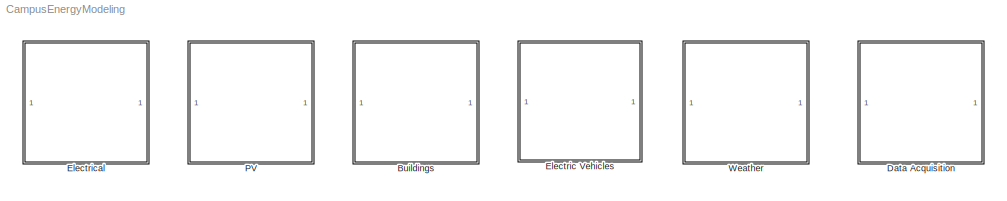
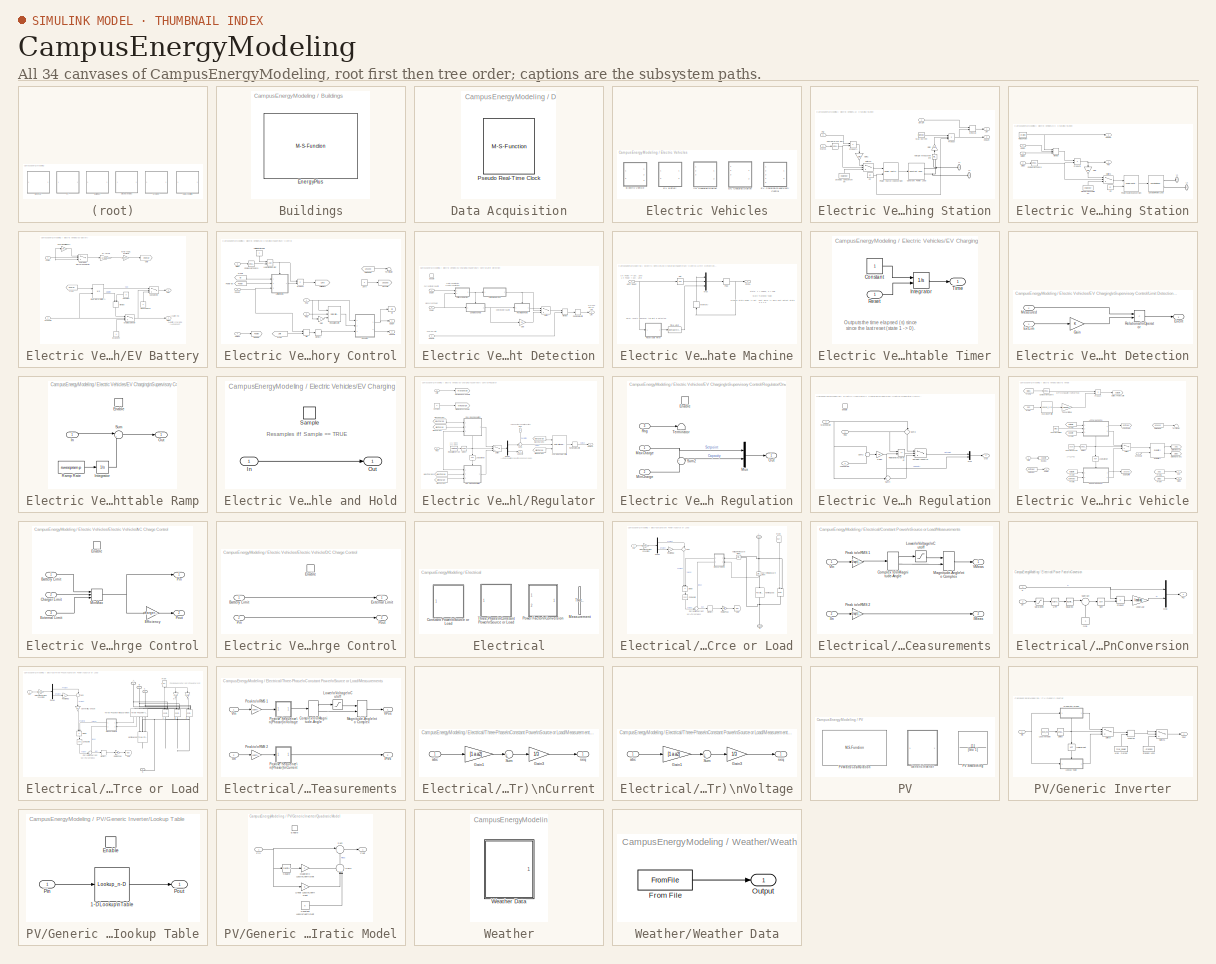
[diagram: thumbnail index - all 34 canvases of the model, root first then tree order]
MODEL CampusEnergyModeling
KIND library
BLOCK [SubSystem] Buildings
  Description = Contains blocks for acquiring and manipulating weather data.
  FunctionWithSeparateData = off
  MaskHideContents = off
  MinAlgLoopOccurrences = off
  Opaque = off
  Ports = []
  PropExecContextOutsideSubsystem = off
  RTWSystemCode = Auto
  RequestExecContextInheritance = off
  SID = 14
  Tag = Weather
BLOCK [M-S-Function] Buildings/EnergyPlus
  FunctionName = mlep_sfun
  Parameters = work_dir, rel_path, fname, weather_profile, time_step, nout, timeout, eplus_path, bcvtb_dir, port, host
  Ports = [1, 3]
  SID = 18
  UserData = DataTag0
  UserDataPersistent = on
BLOCK [SubSystem] Data Acquisition
  Description = Contains blocks for acquiring and manipulating weather data.
  FunctionWithSeparateData = off
  MaskHideContents = off
  MinAlgLoopOccurrences = off
  Opaque = off
  Ports = []
  PropExecContextOutsideSubsystem = off
  RTWSystemCode = Auto
  RequestExecContextInheritance = off
  SID = 145
  Tag = Weather
BLOCK [M-S-Function] Data Acquisition/Pseudo Real-Time Clock
  FunctionName = pseudo_rt_sfun
  Parameters = enab, speedup, rtv_action
  Ports = []
  Priority = 0
  SID = 635
  UserData = DataTag1
  UserDataPersistent = on
BLOCK [SubSystem] Electric Vehicles
  FunctionWithSeparateData = off
  MaskHideContents = off
  MinAlgLoopOccurrences = off
  Opaque = off
  Ports = []
  PropExecContextOutsideSubsystem = off
  RTWSystemCode = Auto
  RequestExecContextInheritance = off
  SID = 241
BLOCK [SubSystem] Electric Vehicles/AC Charging Station
  FunctionWithSeparateData = off
  MaskHideContents = off
  MinAlgLoopOccurrences = off
  Opaque = off
  Ports = [3, 2, 0, 0, 0, 2]
  PropExecContextOutsideSubsystem = off
  RTWSystemCode = Auto
  RequestExecContextInheritance = off
  SID = 593
BLOCK [Outport] Electric Vehicles/AC Charging Station/ChgLim
  IconDisplay = Port number
  Port = 2
  SID = 631
BLOCK [Reference] Electric Vehicles/AC Charging Station/Compare\nTo Zero  REF=simulink/Logic and Bit\nOperations/Compare\nTo Zero
  OutDataTypeStr = boolean
  Ports = [1, 1]
  SID = 597
  SourceBlock = simulink/Logic and Bit\nOperations/Compare\nTo Zero
  SourceType = Compare To Zero
  ZeroCross = on
  relop = ==
BLOCK [Reference] Electric Vehicles/AC Charging Station/Constant Power Load  REF=CampusEnergyModeling/Electrical/Constant Power\nSource or Load
  Conven = load
  PNom = prated
  Ports = [1, 0, 0, 0, 0, 0, 2]
  QNom = prated*(sqrt(1-pf^2)/pf)
  SID = 598
  SourceBlock = CampusEnergyModeling/Electrical/Constant Power\nSource or Load
  SourceType = Constant Power Source/Load
  VLow = 0.7
  VNom = vrated
  fNom = freq
BLOCK [Inport] Electric Vehicles/AC Charging Station/ExtLim
  IconDisplay = Port number
  SID = 594
BLOCK [Gain] Electric Vehicles/AC Charging Station/Gain
  Gain = 1/sqrt(2)
  OutDataTypeStr = Inherit: Inherit via internal rule
  ParamDataTypeStr = Inherit: Inherit via internal rule
  SID = 599
  SaturateOnIntegerOverflow = off
BLOCK [Gain] Electric Vehicles/AC Charging Station/Gain1
  Gain = 1/eff
  OutDataTypeStr = Inherit: Inherit via internal rule
  ParamDataTypeStr = Inherit: Inherit via internal rule
  SID = 630
  SaturateOnIntegerOverflow = off
BLOCK [PMIOPort] Electric Vehicles/AC Charging Station/L1
  Port = 1
  SID = 609
  Side = Left
BLOCK [PMIOPort] Electric Vehicles/AC Charging Station/L2
  Port = 2
  SID = 610
  Side = Left
BLOCK [Outport] Electric Vehicles/AC Charging Station/Lim
  IconDisplay = Port number
  SID = 611
BLOCK [Constant] Electric Vehicles/AC Charging Station/Max Current
  SID = 600
  Value = (prated/pf/eff)/vrated
BLOCK [MinMax] Electric Vehicles/AC Charging Station/MinMax
  InputSameDT = off
  Inputs = 2
  Ports = [2, 1]
  SID = 601
  SaturateOnIntegerOverflow = off
BLOCK [Constant] Electric Vehicles/AC Charging Station/PF
  SID = 602
  Value = pf
BLOCK [Reference] Electric Vehicles/AC Charging Station/Power Factor\nConversion  REF=CampusEnergyModeling/Electrical/Power Factor\nConversion
  Ports = [2, 1]
  SID = 603
  SourceBlock = CampusEnergyModeling/Electrical/Power Factor\nConversion
  SourceType = Power Factor Conversion
  pfType = Lagging
BLOCK [Product] Electric Vehicles/AC Charging Station/Product
  InputSameDT = off
  Inputs = 3
  OutDataTypeStr = Inherit: Inherit via internal rule
  Ports = [3, 1]
  RndMeth = Floor
  SID = 604
  SaturateOnIntegerOverflow = off
BLOCK [Product] Electric Vehicles/AC Charging Station/Product1
  InputSameDT = off
  OutDataTypeStr = Inherit: Inherit via internal rule
  Ports = [2, 1]
  RndMeth = Floor
  SID = 605
  SaturateOnIntegerOverflow = off
BLOCK [Inport] Electric Vehicles/AC Charging Station/Pwr
  IconDisplay = Port number
  Port = 3
  SID = 596
BLOCK [Constant] Electric Vehicles/AC Charging Station/Standby Consumption
  SID = 606
  Value = pstandby
BLOCK [Inport] Electric Vehicles/AC Charging Station/Status
  IconDisplay = Port number
  Port = 2
  SID = 595
BLOCK [Switch] Electric Vehicles/AC Charging Station/Switch1
  InputSameDT = off
  SID = 607
  SaturateOnIntegerOverflow = off
  Threshold = 1
  ZeroCross = off
BLOCK [Reference] Electric Vehicles/AC Charging Station/Voltage Measurement  REF=powerlib/Measurements/Voltage Measurement
  OutputType = Magnitude
  PSBequivalent = 0
  PhasorSimulation = on
  Ports = [0, 1, 0, 0, 0, 2]
  SID = 608
  SourceBlock = powerlib/Measurements/Voltage Measurement
  SourceType = Voltage Measurement
BLOCK [SubSystem] Electric Vehicles/DC Charging Station
  FunctionWithSeparateData = off
  MaskHideContents = off
  MinAlgLoopOccurrences = off
  Opaque = off
  Ports = [3, 2, 0, 0, 0, 2]
  PropExecContextOutsideSubsystem = off
  RTWSystemCode = Auto
  RequestExecContextInheritance = off
  SID = 612
BLOCK [Inport] Electric Vehicles/DC Charging Station/BattLim
  IconDisplay = Port number
  Port = 3
  SID = 615
BLOCK [Outport] Electric Vehicles/DC Charging Station/ChgLim
  IconDisplay = Port number
  Port = 2
  SID = 629
BLOCK [Reference] Electric Vehicles/DC Charging Station/Compare\nTo Zero  REF=simulink/Logic and Bit\nOperations/Compare\nTo Zero
  OutDataTypeStr = boolean
  Ports = [1, 1]
  SID = 616
  SourceBlock = simulink/Logic and Bit\nOperations/Compare\nTo Zero
  SourceType = Compare To Zero
  ZeroCross = on
  relop = ==
BLOCK [Reference] Electric Vehicles/DC Charging Station/Constant Power Load  REF=CampusEnergyModeling/Electrical/Constant Power\nSource or Load
  Conven = load
  PNom = prated
  Ports = [1, 0, 0, 0, 0, 0, 2]
  QNom = prated*(sqrt(1-pf^2)/pf)
  SID = 617
  SourceBlock = CampusEnergyModeling/Electrical/Constant Power\nSource or Load
  SourceType = Constant Power Source/Load
  VLow = 0.7
  VNom = vrated
  fNom = freq
BLOCK [Inport] Electric Vehicles/DC Charging Station/ExtLim
  IconDisplay = Port number
  SID = 613
BLOCK [Gain] Electric Vehicles/DC Charging Station/Gain
  Gain = 1/eff
  OutDataTypeStr = Inherit: Inherit via internal rule
  ParamDataTypeStr = Inherit: Inherit via internal rule
  SID = 618
  SaturateOnIntegerOverflow = off
BLOCK [PMIOPort] Electric Vehicles/DC Charging Station/L1
  Port = 1
  SID = 626
  Side = Left
BLOCK [PMIOPort] Electric Vehicles/DC Charging Station/L2
  Port = 2
  SID = 627
  Side = Left
BLOCK [MinMax] Electric Vehicles/DC Charging Station/MinMax
  InputSameDT = off
  Inputs = 3
  Ports = [3, 1]
  SID = 619
  SaturateOnIntegerOverflow = off
BLOCK [Constant] Electric Vehicles/DC Charging Station/PF
  SID = 620
  Value = pf
BLOCK [Reference] Electric Vehicles/DC Charging Station/Power Factor\nConversion  REF=CampusEnergyModeling/Electrical/Power Factor\nConversion
  Ports = [2, 1]
  SID = 621
  SourceBlock = CampusEnergyModeling/Electrical/Power Factor\nConversion
  SourceType = Power Factor Conversion
  pfType = Lagging
BLOCK [Product] Electric Vehicles/DC Charging Station/Product1
  InputSameDT = off
  OutDataTypeStr = Inherit: Inherit via internal rule
  Ports = [2, 1]
  RndMeth = Floor
  SID = 622
  SaturateOnIntegerOverflow = off
BLOCK [Outport] Electric Vehicles/DC Charging Station/Pwr
  IconDisplay = Port number
  SID = 628
BLOCK [Constant] Electric Vehicles/DC Charging Station/Rated Power
  SID = 623
  Value = prated
BLOCK [Constant] Electric Vehicles/DC Charging Station/Standby Consumption
  SID = 624
  Value = pstandby
BLOCK [Inport] Electric Vehicles/DC Charging Station/Status
  IconDisplay = Port number
  Port = 2
  SID = 614
BLOCK [Switch] Electric Vehicles/DC Charging Station/Switch1
  InputSameDT = off
  SID = 625
  SaturateOnIntegerOverflow = off
  Threshold = 1
  ZeroCross = off
BLOCK [SubSystem] Electric Vehicles/EV Battery
  FunctionWithSeparateData = off
  MaskHideContents = off
  MinAlgLoopOccurrences = off
  Opaque = off
  Ports = [2, 2]
  PropExecContextOutsideSubsystem = off
  RTWSystemCode = Auto
  RequestExecContextInheritance = off
  SID = 201
BLOCK [Switch] Electric Vehicles/EV Battery/Charge or Discharge Selector
  InputSameDT = off
  SID = 392
  SaturateOnIntegerOverflow = off
BLOCK [Gain] Electric Vehicles/EV Battery/Charging Efficiency
  Gain = eff
  OutDataTypeStr = Inherit: Inherit via internal rule
  ParamDataTypeStr = Inherit: Inherit via internal rule
  SID = 389
  SaturateOnIntegerOverflow = off
BLOCK [Constant] Electric Vehicles/EV Battery/Constant
  SID = 324
  Value = 0
BLOCK [Constant] Electric Vehicles/EV Battery/EV Absent
  SID = 325
  Value = -1
BLOCK [Switch] Electric Vehicles/EV Battery/EV Status Selector
  Criteria = u2 > Threshold
  InputSameDT = off
  SID = 326
  SaturateOnIntegerOverflow = off
BLOCK [From] Electric Vehicles/EV Battery/From
  GotoTag = energy
  SID = 390
BLOCK [Goto] Electric Vehicles/EV Battery/Goto
  GotoTag = energy
  SID = 391
BLOCK [Integrator] Electric Vehicles/EV Battery/Integrator\n(Battery)
  ContinuousStateAttributes = 'SOC'
  ExternalReset = rising
  InitialCondition = initSOC
  LimitOutput = on
  LowerSaturationLimit = 0
  Ports = [2, 2]
  SID = 327
  ShowSaturationPort = on
  UpperSaturationLimit = 1
BLOCK [MinMax] Electric Vehicles/EV Battery/MinMax
  Function = max
  InputSameDT = off
  Inputs = 2
  Ports = [2, 1]
  SID = 328
  SaturateOnIntegerOverflow = off
BLOCK [Inport] Electric Vehicles/EV Battery/Power
  IconDisplay = Port number
  SID = 322
BLOCK [Constant] Electric Vehicles/EV Battery/Report SOC = 0
  SID = 329
  Value = 0
BLOCK [Outport] Electric Vehicles/EV Battery/SOC
  IconDisplay = Port number
  SID = 333
BLOCK [Switch] Electric Vehicles/EV Battery/SOC Selector
  InputSameDT = off
  SID = 330
  SaturateOnIntegerOverflow = off
BLOCK [Inport] Electric Vehicles/EV Battery/Schedule
  IconDisplay = Port number
  Port = 2
  SID = 323
BLOCK [Outport] Electric Vehicles/EV Battery/Status
  IconDisplay = Port number
  Port = 2
  SID = 334
BLOCK [Gain] Electric Vehicles/EV Battery/W -> Wh//s
  Gain = 1/3600
  OutDataTypeStr = Inherit: Inherit via internal rule
  ParamDataTypeStr = Inherit: Inherit via internal rule
  SID = 331
  SaturateOnIntegerOverflow = off
BLOCK [Gain] Electric Vehicles/EV Battery/Wh//s -> SOC fraction//s
  Gain = 1/capacity
  OutDataTypeStr = Inherit: Inherit via internal rule
  ParamDataTypeStr = Inherit: Inherit via internal rule
  SID = 332
  SaturateOnIntegerOverflow = off
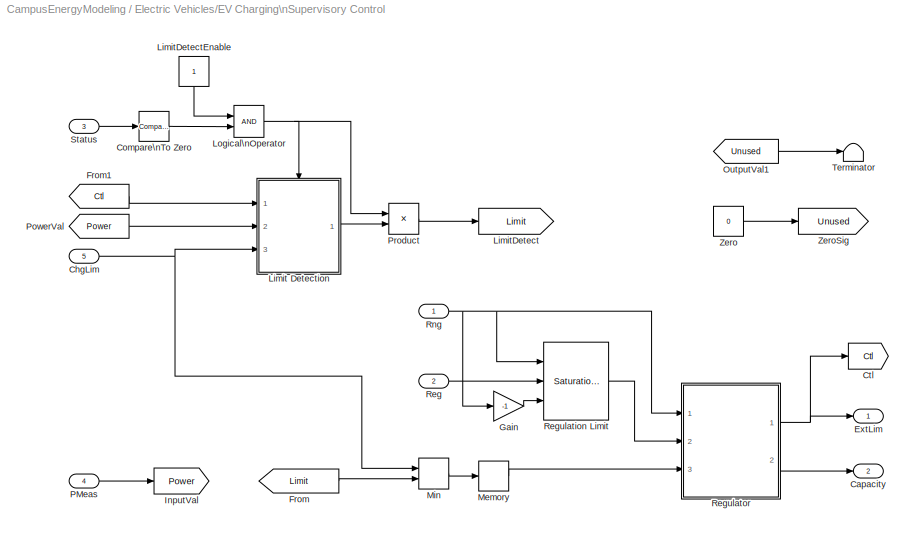
BLOCK [SubSystem] Electric Vehicles/EV Charging\nSupervisory Control
  FunctionWithSeparateData = off
  MaskHideContents = off
  MinAlgLoopOccurrences = off
  Opaque = off
  Ports = [5, 2]
  PropExecContextOutsideSubsystem = off
  RTWSystemCode = Auto
  RequestExecContextInheritance = off
  SID = 492
BLOCK [Outport] Electric Vehicles/EV Charging\nSupervisory Control/Capacity
  IconDisplay = Port number
  Port = 2
  SID = 492:592
BLOCK [Inport] Electric Vehicles/EV Charging\nSupervisory Control/ChgLim
  IconDisplay = Port number
  Port = 5
  SID = 492:497
BLOCK [Reference] Electric Vehicles/EV Charging\nSupervisory Control/Compare\nTo Zero  REF=simulink/Logic and Bit\nOperations/Compare\nTo Zero
  OutDataTypeStr = boolean
  Ports = [1, 1]
  SID = 492:498
  SourceBlock = simulink/Logic and Bit\nOperations/Compare\nTo Zero
  SourceType = Compare To Zero
  ZeroCross = on
  relop = ==
BLOCK [Goto] Electric Vehicles/EV Charging\nSupervisory Control/Ctl
  GotoTag = Ctl
  SID = 492:499
BLOCK [Outport] Electric Vehicles/EV Charging\nSupervisory Control/ExtLim
  IconDisplay = Port number
  SID = 492:591
BLOCK [From] Electric Vehicles/EV Charging\nSupervisory Control/From
  GotoTag = Limit
  SID = 492:500
BLOCK [From] Electric Vehicles/EV Charging\nSupervisory Control/From1
  GotoTag = Ctl
  SID = 492:501
BLOCK [Gain] Electric Vehicles/EV Charging\nSupervisory Control/Gain
  Gain = -1
  OutDataTypeStr = Inherit: Inherit via internal rule
  ParamDataTypeStr = Inherit: Inherit via internal rule
  SID = 492:762
  SaturateOnIntegerOverflow = off
BLOCK [Goto] Electric Vehicles/EV Charging\nSupervisory Control/InputVal
  GotoTag = Power
  SID = 492:502
BLOCK [SubSystem] Electric Vehicles/EV Charging\nSupervisory Control/Limit Detection
  FunctionWithSeparateData = off
  MaskHideContents = off
  MinAlgLoopOccurrences = off
  Opaque = off
  Ports = [3, 1, 1]
  PropExecContextOutsideSubsystem = off
  RTWSystemCode = Auto
  RequestExecContextInheritance = off
  SID = 492:503
BLOCK [Inport] Electric Vehicles/EV Charging\nSupervisory Control/Limit Detection/ChgLim
  IconDisplay = Port number
  Port = 3
  SID = 492:506
BLOCK [EnablePort] Electric Vehicles/EV Charging\nSupervisory Control/Limit Detection/Enable
  Ports = []
  SID = 492:507
  StatesWhenEnabling = reset
BLOCK [Inport] Electric Vehicles/EV Charging\nSupervisory Control/Limit Detection/ExtLim
  IconDisplay = Port number
  SID = 492:504
BLOCK [SubSystem] Electric Vehicles/EV Charging\nSupervisory Control/Limit Detection/Finite State Machine
  FunctionWithSeparateData = off
  MaskHideContents = off
  MinAlgLoopOccurrences = off
  Opaque = off
  Ports = [1, 1]
  PropExecContextOutsideSubsystem = off
  RTWFcnNameOpts = Use subsystem name
  RTWFileNameOpts = Use function name
  RTWSystemCode = Reusable function
  RequestExecContextInheritance = off
  SID = 492:508
  TreatAsAtomicUnit = on
BLOCK [CombinatorialLogic] Electric Vehicles/EV Charging\nSupervisory Control/Limit Detection/Finite State Machine/FSM
  SID = 492:510
  TruthTable = [0; 0; 0; 1; 0; 0; 1; 1]
BLOCK [Inport] Electric Vehicles/EV Charging\nSupervisory Control/Limit Detection/Finite State Machine/Limit Event
  IconDisplay = Port number
  SID = 492:509
BLOCK [Memory] Electric Vehicles/EV Charging\nSupervisory Control/Limit Detection/Finite State Machine/Memory
  SID = 492:511
  X0 = 1
BLOCK [Mux] Electric Vehicles/EV Charging\nSupervisory Control/Limit Detection/Finite State Machine/Mux
  DisplayOption = bar
  Inputs = 3
  Ports = [3, 1]
  SID = 492:512
BLOCK [Logic] Electric Vehicles/EV Charging\nSupervisory Control/Limit Detection/Finite State Machine/Not
  AllPortsSameDT = off
  IconShape = distinctive
  Operator = NOT
  OutDataTypeStr = boolean
  Ports = [1, 1]
  SID = 492:513
BLOCK [SubSystem] Electric Vehicles/EV Charging\nSupervisory Control/Limit Detection/Finite State Machine/Resettable Timer
  FunctionWithSeparateData = off
  MaskHideContents = off
  MinAlgLoopOccurrences = off
  Opaque = off
  Ports = [1, 1]
  PropExecContextOutsideSubsystem = off
  RTWSystemCode = Auto
  RequestExecContextInheritance = off
  SID = 492:514
  TreatAsAtomicUnit = on
BLOCK [Constant] Electric Vehicles/EV Charging\nSupervisory Control/Limit Detection/Finite State Machine/Resettable Timer/Constant
  SID = 492:516
BLOCK [Integrator] Electric Vehicles/EV Charging\nSupervisory Control/Limit Detection/Finite State Machine/Resettable Timer/Integrator
  ExternalReset = level
  Ports = [2, 1]
  SID = 492:517
BLOCK [Inport] Electric Vehicles/EV Charging\nSupervisory Control/Limit Detection/Finite State Machine/Resettable Timer/Reset
  IconDisplay = Port number
  SID = 492:515
BLOCK [Outport] Electric Vehicles/EV Charging\nSupervisory Control/Limit Detection/Finite State Machine/Resettable Timer/Time
  IconDisplay = Port number
  SID = 492:518
BLOCK [Outport] Electric Vehicles/EV Charging\nSupervisory Control/Limit Detection/Finite State Machine/State
  IconDisplay = Port number
  SID = 492:521
BLOCK [Reference] Electric Vehicles/EV Charging\nSupervisory Control/Limit Detection/Finite State Machine/Time Limit  REF=simulink/Logic and Bit\nOperations/Compare\nTo Constant
  OutDataTypeStr = boolean
  Ports = [1, 1]
  SID = 492:520
  SourceBlock = simulink/Logic and Bit\nOperations/Compare\nTo Constant
  SourceType = Compare To Constant
  ZeroCross = on
  const = sweepint
  relop = >=
BLOCK [Gain] Electric Vehicles/EV Charging\nSupervisory Control/Limit Detection/Gain
  Gain = 1.0
  OutDataTypeStr = Inherit: Inherit via internal rule
  ParamDataTypeStr = Inherit: Inherit via internal rule
  SID = 492:525
  SaturateOnIntegerOverflow = off
BLOCK [Outport] Electric Vehicles/EV Charging\nSupervisory Control/Limit Detection/Lim
  IconDisplay = Port number
  SID = 492:546
BLOCK [SubSystem] Electric Vehicles/EV Charging\nSupervisory Control/Limit Detection/Limit Event Detection
  FunctionWithSeparateData = off
  MaskHideContents = off
  MinAlgLoopOccurrences = off
  Opaque = off
  Ports = [2, 1]
  PropExecContextOutsideSubsystem = off
  RTWFcnNameOpts = Use subsystem name
  RTWFileNameOpts = Use function name
  RTWSystemCode = Reusable function
  RequestExecContextInheritance = off
  SID = 492:526
  TreatAsAtomicUnit = on
BLOCK [Outport] Electric Vehicles/EV Charging\nSupervisory Control/Limit Detection/Limit Event Detection/Event
  IconDisplay = Port number
  SID = 492:531
BLOCK [Inport] Electric Vehicles/EV Charging\nSupervisory Control/Limit Detection/Limit Event Detection/ExtLim
  IconDisplay = Port number
  SID = 492:527
BLOCK [Gain] Electric Vehicles/EV Charging\nSupervisory Control/Limit Detection/Limit Event Detection/Gain
  OutDataTypeStr = Inherit: Inherit via internal rule
  ParamDataTypeStr = Inherit: Inherit via internal rule
  SID = 492:529
  SaturateOnIntegerOverflow = off
BLOCK [Inport] Electric Vehicles/EV Charging\nSupervisory Control/Limit Detection/Limit Event Detection/Measured
  IconDisplay = Port number
  Port = 2
  SID = 492:528
BLOCK [RelationalOperator] Electric Vehicles/EV Charging\nSupervisory Control/Limit Detection/Limit Event Detection/Relational\nOperator
  InputSameDT = off
  Operator = <
  OutDataTypeStr = boolean
  Ports = [2, 1]
  SID = 492:530
BLOCK [MinMax] Electric Vehicles/EV Charging\nSupervisory Control/Limit Detection/MinMax
  InputSameDT = off
  Inputs = 2
  Ports = [2, 1]
  SID = 492:532
  SaturateOnIntegerOverflow = off
BLOCK [Inport] Electric Vehicles/EV Charging\nSupervisory Control/Limit Detection/Power
  IconDisplay = Port number
  Port = 2
  SID = 492:505
BLOCK [RateLimiter] Electric Vehicles/EV Charging\nSupervisory Control/Limit Detection/Ramp Rate Limit
  FallingSlewLimit = -sweepramp
  RisingSlewLimit = sweepramp
  SID = 492:760
  SampleTimeMode = inherited
BLOCK [SubSystem] Electric Vehicles/EV Charging\nSupervisory Control/Limit Detection/Resettable Ramp
  FunctionWithSeparateData = off
  MaskHideContents = off
  MinAlgLoopOccurrences = off
  Opaque = off
  Ports = [1, 1, 1]
  PropExecContextOutsideSubsystem = off
  RTWSystemCode = Auto
  RequestExecContextInheritance = off
  SID = 492:533
  TreatAsAtomicUnit = on
BLOCK [EnablePort] Electric Vehicles/EV Charging\nSupervisory Control/Limit Detection/Resettable Ramp/Enable
  Ports = []
  SID = 492:535
  StatesWhenEnabling = reset
BLOCK [Inport] Electric Vehicles/EV Charging\nSupervisory Control/Limit Detection/Resettable Ramp/In
  IconDisplay = Port number
  SID = 492:534
BLOCK [Integrator] Electric Vehicles/EV Charging\nSupervisory Control/Limit Detection/Resettable Ramp/Integrator
  Ports = [1, 1]
  SID = 492:536
BLOCK [Outport] Electric Vehicles/EV Charging\nSupervisory Control/Limit Detection/Resettable Ramp/Out
  IconDisplay = Port number
  SID = 492:539
BLOCK [Constant] Electric Vehicles/EV Charging\nSupervisory Control/Limit Detection/Resettable Ramp/Ramp Rate
  SID = 492:537
  Value = sweepramp
BLOCK [Sum] Electric Vehicles/EV Charging\nSupervisory Control/Limit Detection/Resettable Ramp/Sum
  IconShape = round
  InputSameDT = off
  Inputs = |++
  OutDataTypeStr = Inherit: Inherit via internal rule
  Ports = [2, 1]
  SID = 492:538
  SaturateOnIntegerOverflow = off
BLOCK [SubSystem] Electric Vehicles/EV Charging\nSupervisory Control/Limit Detection/Sample and Hold
  FunctionWithSeparateData = off
  MaskHideContents = off
  MinAlgLoopOccurrences = off
  Opaque = off
  Ports = [1, 1, 1]
  PropExecContextOutsideSubsystem = off
  RTWSystemCode = Auto
  RequestExecContextInheritance = off
  SID = 492:540
  TreatAsAtomicUnit = on
BLOCK [Inport] Electric Vehicles/EV Charging\nSupervisory Control/Limit Detection/Sample and Hold/In
  IconDisplay = Port number
  SID = 492:541
BLOCK [Outport] Electric Vehicles/EV Charging\nSupervisory Control/Limit Detection/Sample and Hold/Out
  IconDisplay = Port number
  SID = 492:543
BLOCK [EnablePort] Electric Vehicles/EV Charging\nSupervisory Control/Limit Detection/Sample and Hold/Sample
  Ports = []
  SID = 492:542
BLOCK [Switch] Electric Vehicles/EV Charging\nSupervisory Control/Limit Detection/Switch
  Criteria = u2 ~= 0
  InputSameDT = off
  SID = 492:545
  SaturateOnIntegerOverflow = off
BLOCK [Goto] Electric Vehicles/EV Charging\nSupervisory Control/LimitDetect
  GotoTag = Limit
  SID = 492:553
BLOCK [Constant] Electric Vehicles/EV Charging\nSupervisory Control/LimitDetectEnable
  SID = 492:554
BLOCK [Logic] Electric Vehicles/EV Charging\nSupervisory Control/Logical\nOperator
  AllPortsSameDT = off
  IconShape = distinctive
  OutDataTypeStr = boolean
  Ports = [2, 1]
  SID = 492:555
BLOCK [Memory] Electric Vehicles/EV Charging\nSupervisory Control/Memory
  SID = 492:556
BLOCK [MinMax] Electric Vehicles/EV Charging\nSupervisory Control/Min
  InputSameDT = off
  Inputs = 2
  Ports = [2, 1]
  SID = 492:557
  SaturateOnIntegerOverflow = off
BLOCK [From] Electric Vehicles/EV Charging\nSupervisory Control/OutputVal1
  GotoTag = Unused
  SID = 492:558
BLOCK [Inport] Electric Vehicles/EV Charging\nSupervisory Control/PMeas
  IconDisplay = Port number
  Port = 4
  SID = 492:496
BLOCK [From] Electric Vehicles/EV Charging\nSupervisory Control/PowerVal
  GotoTag = Power
  SID = 492:559
BLOCK [Product] Electric Vehicles/EV Charging\nSupervisory Control/Product
  InputSameDT = off
  OutDataTypeStr = Inherit: Inherit via internal rule
  Ports = [2, 1]
  RndMeth = Floor
  SID = 492:560
  SaturateOnIntegerOverflow = off
BLOCK [Inport] Electric Vehicles/EV Charging\nSupervisory Control/Reg
  IconDisplay = Port number
  Port = 2
  SID = 492:494
BLOCK [Reference] Electric Vehicles/EV Charging\nSupervisory Control/Regulation Limit  REF=simulink/Discontinuities/Saturation\nDynamic
  DoSatur = off
  LockScale = off
  OutDataType = fixdt(1, 16)
  OutDataTypeStr = Inherit: Same as second input
  OutMax = []
  OutMin = []
  OutScaling = 2^-10
  OutputDataTypeScalingMode = Same as second input
  Ports = [3, 1]
  RndMeth = Floor
  SID = 492:761
  SourceBlock = simulink/Discontinuities/Saturation\nDynamic
  SourceType = Saturation Dynamic
BLOCK [SubSystem] Electric Vehicles/EV Charging\nSupervisory Control/Regulator
  FunctionWithSeparateData = off
  MaskHideContents = off
  MinAlgLoopOccurrences = off
  Opaque = off
  Ports = [3, 2]
  PropExecContextOutsideSubsystem = off
  RTWFcnNameOpts = Use subsystem name
  RTWFileNameOpts = Use function name
  RTWSystemCode = Reusable function
  RequestExecContextInheritance = off
  SID = 492:561
  TreatAsAtomicUnit = on
BLOCK [Outport] Electric Vehicles/EV Charging\nSupervisory Control/Regulator/Capacity
  IconDisplay = Port number
  Port = 2
  SID = 492:585
BLOCK [Reference] Electric Vehicles/EV Charging\nSupervisory Control/Regulator/Charging Power Limits  REF=simulink/Discontinuities/Saturation\nDynamic
  DoSatur = off
  LockScale = off
  OutDataType = fixdt(1, 16)
  OutDataTypeStr = Inherit: Same as second input
  OutMax = []
  OutMin = []
  OutScaling = 2^-10
  OutputDataTypeScalingMode = Same as second input
  Ports = [3, 1]
  RndMeth = Floor
  SID = 492:565
  SourceBlock = simulink/Discontinuities/Saturation\nDynamic
  SourceType = Saturation Dynamic
BLOCK [Constant] Electric Vehicles/EV Charging\nSupervisory Control/Regulator/Constant
  SID = 492:566
  Value = 0
BLOCK [Outport] Electric Vehicles/EV Charging\nSupervisory Control/Regulator/Control
  IconDisplay = Port number
  SID = 492:584
BLOCK [Demux] Electric Vehicles/EV Charging\nSupervisory Control/Regulator/Demux
  DisplayOption = bar
  Outputs = 2
  Ports = [1, 2]
  SID = 492:622
BLOCK [Inport] Electric Vehicles/EV Charging\nSupervisory Control/Regulator/Limit
  IconDisplay = Port number
  Port = 3
  SID = 492:564
BLOCK [Logic] Electric Vehicles/EV Charging\nSupervisory Control/Regulator/Logical\nNot
  AllPortsSameDT = off
  IconShape = distinctive
  Operator = NOT
  OutDataTypeStr = boolean
  Ports = [1, 1]
  SID = 492:618
BLOCK [From] Electric Vehicles/EV Charging\nSupervisory Control/Regulator/MaxCharge1
  GotoTag = MaxCharge
  SID = 492:645
BLOCK [From] Electric Vehicles/EV Charging\nSupervisory Control/Regulator/MaxCharge2
  GotoTag = MaxCharge
  SID = 492:570
BLOCK [From] Electric Vehicles/EV Charging\nSupervisory Control/Regulator/MaxCharge3
  GotoTag = MaxCharge
  SID = 492:647
BLOCK [Goto] Electric Vehicles/EV Charging\nSupervisory Control/Regulator/Maximum Charge Rate
  GotoTag = MaxCharge
  SID = 492:572
BLOCK [From] Electric Vehicles/EV Charging\nSupervisory Control/Regulator/MinCharge1
  GotoTag = MinCharge
  SID = 492:646
BLOCK [From] Electric Vehicles/EV Charging\nSupervisory Control/Regulator/MinCharge2
  GotoTag = MinCharge
  SID = 492:575
BLOCK [From] Electric Vehicles/EV Charging\nSupervisory Control/Regulator/MinCharge3
  GotoTag = MinCharge
  SID = 492:648
BLOCK [Goto] Electric Vehicles/EV Charging\nSupervisory Control/Regulator/Minimum Charge Rate
  GotoTag = MinCharge
  SID = 492:576
BLOCK [SubSystem] Electric Vehicles/EV Charging\nSupervisory Control/Regulator/One-sided Regulation
  FunctionWithSeparateData = off
  MaskHideContents = off
  MinAlgLoopOccurrences = off
  Opaque = off
  Ports = [3, 1, 1]
  PropExecContextOutsideSubsystem = off
  RTWSystemCode = Auto
  RequestExecContextInheritance = off
  SID = 492:627
  TreatAsAtomicUnit = on
BLOCK [EnablePort] Electric Vehicles/EV Charging\nSupervisory Control/Regulator/One-sided Regulation/Enable
  Ports = []
  SID = 492:629
BLOCK [Inport] Electric Vehicles/EV Charging\nSupervisory Control/Regulator/One-sided Regulation/MaxCharge
  IconDisplay = Port number
  SID = 492:643
BLOCK [Inport] Electric Vehicles/EV Charging\nSupervisory Control/Regulator/One-sided Regulation/MinCharge
  IconDisplay = Port number
  Port = 2
  SID = 492:644
BLOCK [Mux] Electric Vehicles/EV Charging\nSupervisory Control/Regulator/One-sided Regulation/Mux
  DisplayOption = bar
  Inputs = 2
  Ports = [2, 1]
  SID = 492:636
BLOCK [Outport] Electric Vehicles/EV Charging\nSupervisory Control/Regulator/One-sided Regulation/Out
  IconDisplay = Port number
  SID = 492:642
BLOCK [Inport] Electric Vehicles/EV Charging\nSupervisory Control/Regulator/One-sided Regulation/Rng
  IconDisplay = Port number
  Port = 3
  SID = 492:628
BLOCK [Sum] Electric Vehicles/EV Charging\nSupervisory Control/Regulator/One-sided Regulation/Sum2
  IconShape = round
  InputSameDT = off
  Inputs = +-
  OutDataTypeStr = Inherit: Inherit via internal rule
  Ports = [2, 1]
  SID = 492:639
  SaturateOnIntegerOverflow = off
BLOCK [Terminator] Electric Vehicles/EV Charging\nSupervisory Control/Regulator/One-sided Regulation/Terminator
  SID = 492:759
BLOCK [RateLimiter] Electric Vehicles/EV Charging\nSupervisory Control/Regulator/Ramp Rate\nLimit
  FallingSlewLimit = -ramp
  RisingSlewLimit = ramp
  SID = 492:577
  SampleTimeMode = inherited
BLOCK [Inport] Electric Vehicles/EV Charging\nSupervisory Control/Regulator/Reg
  IconDisplay = Port number
  Port = 2
  SID = 492:563
BLOCK [Constant] Electric Vehicles/EV Charging\nSupervisory Control/Regulator/Regulation\nType
  SID = 492:623
  Value = regtype
BLOCK [Inport] Electric Vehicles/EV Charging\nSupervisory Control/Regulator/Rng
  IconDisplay = Port number
  SID = 492:621
BLOCK [Reference] Electric Vehicles/EV Charging\nSupervisory Control/Regulator/Select  REF=simulink/Logic and Bit\nOperations/Compare\nTo Constant
  OutDataTypeStr = boolean
  Ports = [1, 1]
  SID = 492:624
  SourceBlock = simulink/Logic and Bit\nOperations/Compare\nTo Constant
  SourceType = Compare To Constant
  ZeroCross = on
  const = 1
  relop = ==
BLOCK [Sum] Electric Vehicles/EV Charging\nSupervisory Control/Regulator/Sum1
  IconShape = round
  InputSameDT = off
  Inputs = ++|
  OutDataTypeStr = Inherit: Inherit via internal rule
  Ports = [2, 1]
  SID = 492:580
  SaturateOnIntegerOverflow = off
BLOCK [Switch] Electric Vehicles/EV Charging\nSupervisory Control/Regulator/Switch
  Criteria = u2 > Threshold
  InputSameDT = off
  SID = 492:619
  SaturateOnIntegerOverflow = off
  ZeroCross = off
BLOCK [SubSystem] Electric Vehicles/EV Charging\nSupervisory Control/Regulator/Two-sided Regulation
  FunctionWithSeparateData = off
  MaskHideContents = off
  MinAlgLoopOccurrences = off
  Opaque = off
  Ports = [3, 1, 1]
  PropExecContextOutsideSubsystem = off
  RTWSystemCode = Auto
  RequestExecContextInheritance = off
  SID = 492:598
  TreatAsAtomicUnit = on
BLOCK [EnablePort] Electric Vehicles/EV Charging\nSupervisory Control/Regulator/Two-sided Regulation/Enable
  Ports = []
  SID = 492:600
BLOCK [Gain] Electric Vehicles/EV Charging\nSupervisory Control/Regulator/Two-sided Regulation/Gain2
  Gain = 1/2
  OutDataTypeStr = Inherit: Inherit via internal rule
  ParamDataTypeStr = Inherit: Inherit via internal rule
  SID = 492:603
  SaturateOnIntegerOverflow = off
BLOCK [Inport] Electric Vehicles/EV Charging\nSupervisory Control/Regulator/Two-sided Regulation/MaxCharge
  IconDisplay = Port number
  Port = 2
  SID = 492:649
BLOCK [Inport] Electric Vehicles/EV Charging\nSupervisory Control/Regulator/Two-sided Regulation/MinCharge
  IconDisplay = Port number
  Port = 3
  SID = 492:650
BLOCK [Mux] Electric Vehicles/EV Charging\nSupervisory Control/Regulator/Two-sided Regulation/Mux
  DisplayOption = bar
  Inputs = 2
  Ports = [2, 1]
  SID = 492:620
BLOCK [Outport] Electric Vehicles/EV Charging\nSupervisory Control/Regulator/Two-sided Regulation/Out
  IconDisplay = Port number
  SID = 492:601
BLOCK [RelationalOperator] Electric Vehicles/EV Charging\nSupervisory Control/Regulator/Two-sided Regulation/Relational\nOperator
  InputSameDT = off
  Operator = <=
  OutDataTypeStr = boolean
  Ports = [2, 1]
  SID = 492:609
BLOCK [Inport] Electric Vehicles/EV Charging\nSupervisory Control/Regulator/Two-sided Regulation/Rng
  IconDisplay = Port number
  SID = 492:602
BLOCK [Switch] Electric Vehicles/EV Charging\nSupervisory Control/Regulator/Two-sided Regulation/Setpoint\nControl
  Criteria = u2 ~= 0
  InputSameDT = off
  SID = 492:610
  SaturateOnIntegerOverflow = off
BLOCK [Sum] Electric Vehicles/EV Charging\nSupervisory Control/Regulator/Two-sided Regulation/Sum2
  IconShape = round
  InputSameDT = off
  Inputs = +-
  OutDataTypeStr = Inherit: Inherit via internal rule
  Ports = [2, 1]
  SID = 492:611
  SaturateOnIntegerOverflow = off
BLOCK [Sum] Electric Vehicles/EV Charging\nSupervisory Control/Regulator/Two-sided Regulation/Sum3
  IconShape = round
  InputSameDT = off
  Inputs = -+|
  OutDataTypeStr = Inherit: Inherit via internal rule
  Ports = [2, 1]
  SID = 492:612
  SaturateOnIntegerOverflow = off
BLOCK [Sum] Electric Vehicles/EV Charging\nSupervisory Control/Regulator/Two-sided Regulation/Sum4
  IconShape = round
  InputSameDT = off
  Inputs = -+|
  OutDataTypeStr = Inherit: Inherit via internal rule
  Ports = [2, 1]
  SID = 492:613
  SaturateOnIntegerOverflow = off
BLOCK [Inport] Electric Vehicles/EV Charging\nSupervisory Control/Rng
  IconDisplay = Port number
  SID = 492:493
BLOCK [Inport] Electric Vehicles/EV Charging\nSupervisory Control/Status
  IconDisplay = Port number
  Port = 3
  SID = 492:495
BLOCK [Terminator] Electric Vehicles/EV Charging\nSupervisory Control/Terminator
  SID = 492:588
BLOCK [Constant] Electric Vehicles/EV Charging\nSupervisory Control/Zero
  SID = 492:589
  Value = 0
BLOCK [Goto] Electric Vehicles/EV Charging\nSupervisory Control/ZeroSig
  GotoTag = Unused
  SID = 492:590
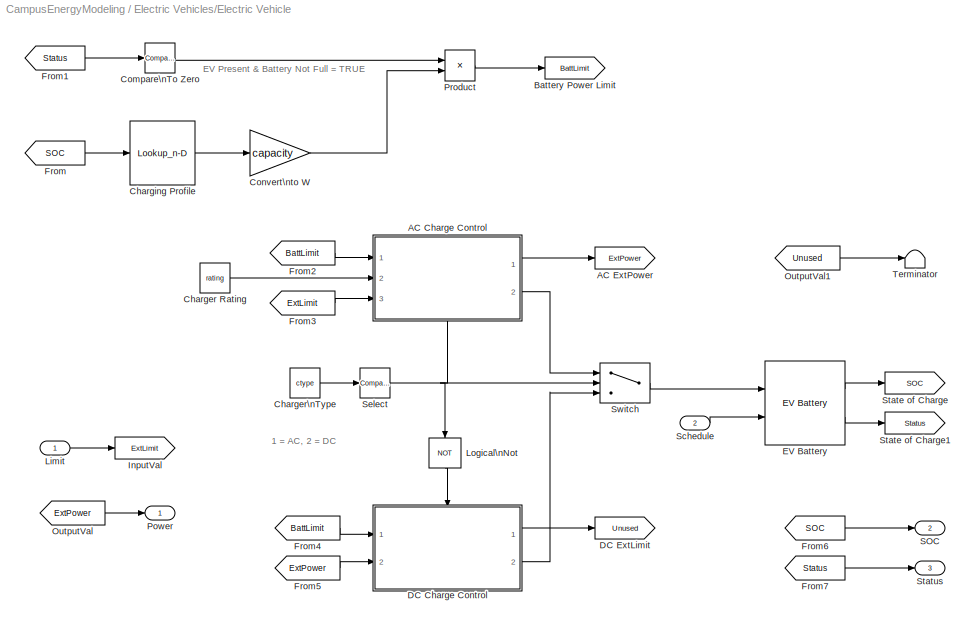
BLOCK [SubSystem] Electric Vehicles/Electric Vehicle
  FunctionWithSeparateData = off
  MaskHideContents = off
  MinAlgLoopOccurrences = off
  Opaque = off
  Ports = [2, 3]
  PropExecContextOutsideSubsystem = off
  RTWSystemCode = Auto
  RequestExecContextInheritance = off
  SID = 170
BLOCK [SubSystem] Electric Vehicles/Electric Vehicle/AC Charge Control
  FunctionWithSeparateData = off
  MaskHideContents = off
  MinAlgLoopOccurrences = off
  Opaque = off
  Ports = [3, 2, 1]
  PropExecContextOutsideSubsystem = off
  RTWSystemCode = Auto
  RequestExecContextInheritance = off
  SID = 170:461
  TreatAsAtomicUnit = on
BLOCK [Inport] Electric Vehicles/Electric Vehicle/AC Charge Control/Battery Limit
  IconDisplay = Port number
  SID = 170:462
BLOCK [Inport] Electric Vehicles/Electric Vehicle/AC Charge Control/Charger Limit
  IconDisplay = Port number
  Port = 2
  SID = 170:481
BLOCK [Gain] Electric Vehicles/Electric Vehicle/AC Charge Control/Efficiency
  Gain = chargerEff
  OutDataTypeStr = Inherit: Inherit via internal rule
  ParamDataTypeStr = Inherit: Inherit via internal rule
  SID = 170:536
  SaturateOnIntegerOverflow = off
BLOCK [EnablePort] Electric Vehicles/Electric Vehicle/AC Charge Control/Enable
  Ports = []
  SID = 170:463
BLOCK [Inport] Electric Vehicles/Electric Vehicle/AC Charge Control/External Limit
  IconDisplay = Port number
  Port = 3
  SID = 170:482
BLOCK [MinMax] Electric Vehicles/Electric Vehicle/AC Charge Control/MinMax
  InputSameDT = off
  Inputs = 3
  Ports = [3, 1]
  SID = 170:535
  SaturateOnIntegerOverflow = off
BLOCK [Outport] Electric Vehicles/Electric Vehicle/AC Charge Control/Pin
  IconDisplay = Port number
  SID = 170:470
BLOCK [Outport] Electric Vehicles/Electric Vehicle/AC Charge Control/Pout
  IconDisplay = Port number
  Port = 2
  SID = 170:483
BLOCK [Goto] Electric Vehicles/Electric Vehicle/AC ExtPower
  GotoTag = ExtPower
  SID = 170:517
BLOCK [Goto] Electric Vehicles/Electric Vehicle/Battery Power Limit
  GotoTag = BattLimit
  SID = 170:477
BLOCK [Constant] Electric Vehicles/Electric Vehicle/Charger Rating
  SID = 170:511
  Value = rating
BLOCK [Constant] Electric Vehicles/Electric Vehicle/Charger\nType
  SID = 170:491
  Value = ctype
BLOCK [Lookup_n-D] Electric Vehicles/Electric Vehicle/Charging Profile
  BeginIndexSearchUsingPreviousIndexResult = on
  BreakpointsForDimension1 = profileSOC
  ExtrapMethod = Clip
  IndexSearchMethod = Linear search
  NumberOfTableDimensions = 1
  Ports = [1, 1]
  RndMeth = Simplest
  SID = 170:474
  Table = profileRate
  UseLastTableValue = on
BLOCK [Reference] Electric Vehicles/Electric Vehicle/Compare\nTo Zero  REF=simulink/Logic and Bit\nOperations/Compare\nTo Zero
  OutDataTypeStr = boolean
  Ports = [1, 1]
  SID = 170:475
  SourceBlock = simulink/Logic and Bit\nOperations/Compare\nTo Zero
  SourceType = Compare To Zero
  ZeroCross = on
  relop = ==
BLOCK [Gain] Electric Vehicles/Electric Vehicle/Convert\nto W
  Gain = capacity
  OutDataTypeStr = Inherit: Inherit via internal rule
  ParamDataTypeStr = Inherit: Inherit via internal rule
  SID = 170:476
  SaturateOnIntegerOverflow = off
BLOCK [SubSystem] Electric Vehicles/Electric Vehicle/DC Charge Control
  FunctionWithSeparateData = off
  MaskHideContents = off
  MinAlgLoopOccurrences = off
  Opaque = off
  Ports = [2, 2, 1]
  PropExecContextOutsideSubsystem = off
  RTWSystemCode = Auto
  RequestExecContextInheritance = off
  SID = 170:493
  TreatAsAtomicUnit = on
BLOCK [Inport] Electric Vehicles/Electric Vehicle/DC Charge Control/Battery Limit
  IconDisplay = Port number
  SID = 170:495
BLOCK [EnablePort] Electric Vehicles/Electric Vehicle/DC Charge Control/Enable
  Ports = []
  SID = 170:498
BLOCK [Outport] Electric Vehicles/Electric Vehicle/DC Charge Control/External Limit
  IconDisplay = Port number
  SID = 170:522
BLOCK [Inport] Electric Vehicles/Electric Vehicle/DC Charge Control/Pin
  IconDisplay = Port number
  Port = 2
  SID = 170:501
BLOCK [Outport] Electric Vehicles/Electric Vehicle/DC Charge Control/Pout
  IconDisplay = Port number
  Port = 2
  SID = 170:500
BLOCK [Goto] Electric Vehicles/Electric Vehicle/DC ExtLimit
  GotoTag = Unused
  SID = 170:516
BLOCK [Reference] Electric Vehicles/Electric Vehicle/EV Battery  REF=CampusEnergyModeling/Electric Vehicles/EV Battery
  Ports = [2, 2]
  SID = 170:503
  SourceBlock = CampusEnergyModeling/Electric Vehicles/EV Battery
  SourceType = Electric Vehicle Battery
  capacity = capacity
  eff = battEff
  initSOC = initSOC
BLOCK [From] Electric Vehicles/Electric Vehicle/From
  GotoTag = SOC
  SID = 170:508
BLOCK [From] Electric Vehicles/Electric Vehicle/From1
  GotoTag = Status
  SID = 170:509
BLOCK [From] Electric Vehicles/Electric Vehicle/From2
  GotoTag = BattLimit
  SID = 170:510
BLOCK [From] Electric Vehicles/Electric Vehicle/From3
  GotoTag = ExtLimit
  SID = 170:512
BLOCK [From] Electric Vehicles/Electric Vehicle/From4
  GotoTag = BattLimit
  SID = 170:514
BLOCK [From] Electric Vehicles/Electric Vehicle/From5
  GotoTag = ExtPower
  SID = 170:523
BLOCK [From] Electric Vehicles/Electric Vehicle/From6
  GotoTag = SOC
  SID = 170:529
BLOCK [From] Electric Vehicles/Electric Vehicle/From7
  GotoTag = Status
  SID = 170:530
BLOCK [Goto] Electric Vehicles/Electric Vehicle/InputVal
  GotoTag = ExtLimit
  SID = 170:524
BLOCK [Inport] Electric Vehicles/Electric Vehicle/Limit
  IconDisplay = Port number
  SID = 170:520
BLOCK [Logic] Electric Vehicles/Electric Vehicle/Logical\nNot
  AllPortsSameDT = off
  IconShape = distinctive
  Operator = NOT
  OutDataTypeStr = boolean
  Ports = [1, 1]
  SID = 170:490
BLOCK [From] Electric Vehicles/Electric Vehicle/OutputVal
  GotoTag = ExtPower
  SID = 170:525
BLOCK [From] Electric Vehicles/Electric Vehicle/OutputVal1
  GotoTag = Unused
  SID = 170:538
BLOCK [Outport] Electric Vehicles/Electric Vehicle/Power
  IconDisplay = Port number
  SID = 170:519
BLOCK [Product] Electric Vehicles/Electric Vehicle/Product
  InputSameDT = off
  OutDataTypeStr = Inherit: Inherit via internal rule
  Ports = [2, 1]
  RndMeth = Floor
  SID = 170:479
  SaturateOnIntegerOverflow = off
BLOCK [Outport] Electric Vehicles/Electric Vehicle/SOC
  IconDisplay = Port number
  Port = 2
  SID = 170:527
BLOCK [Inport] Electric Vehicles/Electric Vehicle/Schedule
  IconDisplay = Port number
  Port = 2
  SID = 170:505
BLOCK [Reference] Electric Vehicles/Electric Vehicle/Select  REF=simulink/Logic and Bit\nOperations/Compare\nTo Constant
  OutDataTypeStr = boolean
  Ports = [1, 1]
  SID = 170:492
  SourceBlock = simulink/Logic and Bit\nOperations/Compare\nTo Constant
  SourceType = Compare To Constant
  ZeroCross = on
  const = 1
  relop = ==
BLOCK [Goto] Electric Vehicles/Electric Vehicle/State of Charge
  GotoTag = SOC
  SID = 170:506
BLOCK [Goto] Electric Vehicles/Electric Vehicle/State of Charge1
  GotoTag = Status
  SID = 170:507
BLOCK [Outport] Electric Vehicles/Electric Vehicle/Status
  IconDisplay = Port number
  Port = 3
  SID = 170:528
BLOCK [Switch] Electric Vehicles/Electric Vehicle/Switch
  Criteria = u2 > Threshold
  InputSameDT = off
  SID = 170:513
  SaturateOnIntegerOverflow = off
  ZeroCross = off
BLOCK [Terminator] Electric Vehicles/Electric Vehicle/Terminator
  SID = 170:539
BLOCK [SubSystem] Electrical
  Description = Contains blocks for acquiring and manipulating weather data.
  FunctionWithSeparateData = off
  MaskHideContents = off
  MinAlgLoopOccurrences = off
  Opaque = off
  Ports = []
  PropExecContextOutsideSubsystem = off
  RTWSystemCode = Auto
  RequestExecContextInheritance = off
  SID = 12
  Tag = Weather
BLOCK [SubSystem] Electrical/Constant Power\nSource or Load
  FunctionWithSeparateData = off
  MaskHideContents = off
  MinAlgLoopOccurrences = off
  Opaque = off
  Ports = [1, 0, 0, 0, 0, 0, 2]
  PropExecContextOutsideSubsystem = off
  RTWSystemCode = Auto
  RequestExecContextInheritance = off
  SID = 336
BLOCK [PMIOPort] Electrical/Constant Power\nSource or Load/A
  Port = 1
  SID = 379
  Side = Right
BLOCK [Math] Electrical/Constant Power\nSource or Load/Conjugate
  Operator = conj
  Ports = [1, 1]
  SID = 338
BLOCK [Sum] Electrical/Constant Power\nSource or Load/Correction Current
  IconShape = round
  InputSameDT = off
  Inputs = -+|
  OutDataTypeStr = Inherit: Inherit via internal rule
  Ports = [2, 1]
  SID = 340
  SaturateOnIntegerOverflow = off
BLOCK [Reference] Electrical/Constant Power\nSource or Load/Current\nMeasurement  REF=powerlib/Measurements/Current Measurement
  OutputType = Complex
  PSBequivalent = 0
  PhasorSimulation = on
  Ports = [0, 1, 0, 0, 0, 1, 1]
  SID = 385
  SourceBlock = powerlib/Measurements/Current Measurement
  SourceType = Current Measurement
BLOCK [Demux] Electrical/Constant Power\nSource or Load/Demux
  DisplayOption = bar
  Outputs = 2
  Ports = [1, 2]
  SID = 341
BLOCK [Product] Electrical/Constant Power\nSource or Load/Divide
  InputSameDT = off
  Inputs = */
  OutDataTypeStr = Inherit: Inherit via internal rule
  Ports = [2, 1]
  RndMeth = Floor
  SID = 342
  SaturateOnIntegerOverflow = off
BLOCK [From] Electrical/Constant Power\nSource or Load/From
  GotoTag = IVar
  SID = 343
BLOCK [Goto] Electrical/Constant Power\nSource or Load/Goto
  GotoTag = IVar
  SID = 344
BLOCK [Reference] Electrical/Constant Power\nSource or Load/IA  REF=powerlib/Electrical\nSources/Controlled Current Source
  Amplitude = 0
  Frequency = 0
  Initialize = off
  Measurements = Current
  Phase = 0
  Ports = [1, 0, 0, 0, 0, 1, 1]
  SID = 345
  SourceBlock = powerlib/Electrical\nSources/Controlled Current Source
  SourceType = Controlled Current Source
  Source_Type = AC
BLOCK [Gain] Electrical/Constant Power\nSource or Load/Match Electrical\nConvention
  Gain = InputGain
  OutDataTypeStr = Inherit: Inherit via internal rule
  ParamDataTypeStr = Inherit: Inherit via internal rule
  SID = 348
  SaturateOnIntegerOverflow = off
BLOCK [SubSystem] Electrical/Constant Power\nSource or Load/Measurements
  FunctionWithSeparateData = off
  MaskHideContents = off
  MinAlgLoopOccurrences = off
  Opaque = off
  Ports = [2, 2]
  PropExecContextOutsideSubsystem = off
  RTWSystemCode = Auto
  RequestExecContextInheritance = off
  SID = 349
BLOCK [ComplexToMagnitudeAngle] Electrical/Constant Power\nSource or Load/Measurements/Complex to\nMagnitude-Angle
  Ports = [1, 2]
  SID = 352
BLOCK [Inport] Electrical/Constant Power\nSource or Load/Measurements/IIn
  IconDisplay = Port number
  Port = 2
  SID = 351
BLOCK [Outport] Electrical/Constant Power\nSource or Load/Measurements/IMeas
  IconDisplay = Port number
  Port = 2
  SID = 370
BLOCK [Saturate] Electrical/Constant Power\nSource or Load/Measurements/Lower\nVoltage\nCutoff
  InputPortMap = u0
  LowerLimit = VLow*VNom
  Ports = [1, 1]
  SID = 353
  UpperLimit = inf
BLOCK [MagnitudeAngleToComplex] Electrical/Constant Power\nSource or Load/Measurements/Magnitude-Angle\nto Complex
  Ports = [2, 1]
  SID = 354
BLOCK [Gain] Electrical/Constant Power\nSource or Load/Measurements/Peak to\nRMS 1
  Gain = 1/sqrt(2)
  OutDataTypeStr = Inherit: Inherit via internal rule
  ParamDataTypeStr = Inherit: Inherit via internal rule
  SID = 355
  SaturateOnIntegerOverflow = off
BLOCK [Gain] Electrical/Constant Power\nSource or Load/Measurements/Peak to\nRMS 2
  Gain = 1/sqrt(2)
  OutDataTypeStr = Inherit: Inherit via internal rule
  ParamDataTypeStr = Inherit: Inherit via internal rule
  SID = 356
  SaturateOnIntegerOverflow = off
BLOCK [Inport] Electrical/Constant Power\nSource or Load/Measurements/VIn
  IconDisplay = Port number
  SID = 350
BLOCK [Outport] Electrical/Constant Power\nSource or Load/Measurements/VMeas
  IconDisplay = Port number
  SID = 369
BLOCK [Memory] Electrical/Constant Power\nSource or Load/Memory
  SID = 371
BLOCK [PMIOPort] Electrical/Constant Power\nSource or Load/N
  Port = 2
  SID = 382
  Side = Right
BLOCK [Reference] Electrical/Constant Power\nSource or Load/Nominal Load  REF=powerlib/Elements/Parallel RLC Load
  ActivePower = max(PNom*InputGain,1e-3)
  AttributesFormatString = \\n
  CapacitivePower = max(-QNom*InputGain,0)
  InductivePower = max(QNom*InputGain,0)
  InitialCurrent = 0
  InitialVoltage = 0
  LConnTagsString = a
  Measurements = None
  NominalFrequency = fNom
  NominalVoltage = VNom
  Ports = [0, 0, 0, 0, 0, 1, 1]
  RConnTagsString = __new0
  SID = 388
  SetiL0 = off
  Setx0 = off
  SourceBlock = powerlib/Elements/Parallel RLC Load
  SourceType = Parallel RLC Load
BLOCK [Inport] Electrical/Constant Power\nSource or Load/PQ
  IconDisplay = Port number
  PortDimensions = 2
  SID = 337
  SignalType = real
BLOCK [Gain] Electrical/Constant Power\nSource or Load/RMS to Peak
  Gain = sqrt(2)
  OutDataTypeStr = Inherit: Inherit via internal rule
  ParamDataTypeStr = Inherit: Inherit via internal rule
  SID = 373
  SaturateOnIntegerOverflow = off
BLOCK [Gain] Electrical/Constant Power\nSource or Load/Real to Imag
  Gain = 1j
  OutDataTypeStr = Inherit: Inherit via internal rule
  ParamDataTypeStr = Inherit: Inherit via internal rule
  SID = 374
  SaturateOnIntegerOverflow = off
BLOCK [Sum] Electrical/Constant Power\nSource or Load/Sum
  IconShape = round
  InputSameDT = off
  Inputs = ++|
  OutDataTypeStr = Inherit: Inherit via internal rule
  Ports = [2, 1]
  SID = 375
  SaturateOnIntegerOverflow = off
BLOCK [Reference] Electrical/Constant Power\nSource or Load/Voltage\nMeasurement  REF=powerlib/Measurements/Voltage Measurement
  OutputType = Complex
  PSBequivalent = 0
  PhasorSimulation = on
  Ports = [0, 1, 0, 0, 0, 2]
  SID = 386
  SourceBlock = powerlib/Measurements/Voltage Measurement
  SourceType = Voltage Measurement
BLOCK [Reference] Electrical/Measurement  REF=powerlib/Measurements/Three-Phase\nV-I Measurement
  CurrentMeasurement = yes
  Ipu = off
  LabelI = Iabc_1
  LabelV = Vabc_1
  OutputType = Complex
  PSBequivalent = 0
  Pbase = 1e6
  PhasorSimulation = on
  Ports = [0, 2, 0, 0, 0, 3, 3]
  SID = 234
  SetLabelI = on
  SetLabelV = on
  SourceBlock = powerlib/Measurements/Three-Phase\nV-I Measurement
  SourceType = Three-Phase VI Measurement
  Vbase = 25e3
  VoltageMeasurement = phase-to-ground
  Vpu = off
  VpuLL = off
BLOCK [SubSystem] Electrical/Power Factor\nConversion
  FunctionWithSeparateData = off
  MaskHideContents = off
  MinAlgLoopOccurrences = off
  Opaque = off
  Ports = [2, 1]
  PropExecContextOutsideSubsystem = off
  RTWSystemCode = Auto
  RequestExecContextInheritance = off
  SID = 216
BLOCK [Math] Electrical/Power Factor\nConversion/1//PF
  Operator = reciprocal
  Ports = [1, 1]
  SID = 218
BLOCK [Gain] Electrical/Power Factor\nConversion/Lead//Lag
  Gain = leadlag
  OutDataTypeStr = Inherit: Inherit via internal rule
  ParamDataTypeStr = Inherit: Inherit via internal rule
  SID = 230
  SaturateOnIntegerOverflow = off
BLOCK [Mux] Electrical/Power Factor\nConversion/Mux
  DisplayOption = bar
  Inputs = 2
  Ports = [2, 1]
  SID = 220
BLOCK [Constant] Electrical/Power Factor\nConversion/One
  SID = 221
BLOCK [Inport] Electrical/Power Factor\nConversion/P
  IconDisplay = Port number
  SID = 217
BLOCK [Inport] Electrical/Power Factor\nConversion/PF
  IconDisplay = Port number
  Port = 2
  SID = 229
BLOCK [Outport] Electrical/Power Factor\nConversion/PQ
  IconDisplay = Port number
  SID = 228
BLOCK [Product] Electrical/Power Factor\nConversion/Product
  InputSameDT = off
  OutDataTypeStr = Inherit: Inherit via internal rule
  Ports = [2, 1]
  RndMeth = Floor
  SID = 223
  SaturateOnIntegerOverflow = off
BLOCK [Saturate] Electrical/Power Factor\nConversion/Saturation
  InputPortMap = u0
  LowerLimit = 0
  Ports = [1, 1]
  SID = 231
  UpperLimit = 1
  ZeroCross = off
BLOCK [Sqrt] Electrical/Power Factor\nConversion/Sqrt
  SID = 225
BLOCK [Math] Electrical/Power Factor\nConversion/Squared
  Operator = magnitude^2
  Ports = [1, 1]
  SID = 226
BLOCK [Sum] Electrical/Power Factor\nConversion/Subtract
  IconShape = round
  InputSameDT = off
  Inputs = |+-
  OutDataTypeStr = Inherit: Inherit via internal rule
  Ports = [2, 1]
  SID = 219
  SaturateOnIntegerOverflow = off
BLOCK [SubSystem] Electrical/Three-Phase\nConstant Power\nSource or Load
  FunctionWithSeparateData = off
  MaskHideContents = off
  MinAlgLoopOccurrences = off
  Opaque = off
  Ports = [1, 0, 0, 0, 0, 0, 4]
  PropExecContextOutsideSubsystem = off
  RTWSystemCode = Auto
  RequestExecContextInheritance = off
  SID = 74
BLOCK [PMIOPort] Electrical/Three-Phase\nConstant Power\nSource or Load/A
  Port = 1
  SID = 117
  Side = Right
BLOCK [PMIOPort] Electrical/Three-Phase\nConstant Power\nSource or Load/B
  Port = 2
  SID = 118
  Side = Right
BLOCK [PMIOPort] Electrical/Three-Phase\nConstant Power\nSource or Load/C
  Port = 3
  SID = 119
  Side = Right
BLOCK [Math] Electrical/Three-Phase\nConstant Power\nSource or Load/Conjugate
  Operator = conj
  Ports = [1, 1]
  SID = 76
BLOCK [Gain] Electrical/Three-Phase\nConstant Power\nSource or Load/Convert to 1-phase
  Gain = 1/3
  OutDataTypeStr = Inherit: Inherit via internal rule
  ParamDataTypeStr = Inherit: Inherit via internal rule
  SID = 77
  SaturateOnIntegerOverflow = off
BLOCK [Sum] Electrical/Three-Phase\nConstant Power\nSource or Load/Correction Current
  IconShape = round
  InputSameDT = off
  Inputs = -+|
  OutDataTypeStr = Inherit: Inherit via internal rule
  Ports = [2, 1]
  SID = 78
  SaturateOnIntegerOverflow = off
BLOCK [Demux] Electrical/Three-Phase\nConstant Power\nSource or Load/Demux
  DisplayOption = bar
  Outputs = 2
  Ports = [1, 2]
  SID = 79
BLOCK [Product] Electrical/Three-Phase\nConstant Power\nSource or Load/Divide
  InputSameDT = off
  Inputs = */
  OutDataTypeStr = Inherit: Inherit via internal rule
  Ports = [2, 1]
  RndMeth = Floor
  SID = 80
  SaturateOnIntegerOverflow = off
BLOCK [From] Electrical/Three-Phase\nConstant Power\nSource or Load/From
  GotoTag = IVar
  SID = 81
BLOCK [Goto] Electrical/Three-Phase\nConstant Power\nSource or Load/Goto
  GotoTag = IVar
  SID = 82
BLOCK [Reference] Electrical/Three-Phase\nConstant Power\nSource or Load/IA  REF=powerlib/Electrical\nSources/Controlled Current Source
  Amplitude = 0
  Frequency = 0
  Initialize = off
  Measurements = Current
  Phase = 0
  Ports = [1, 0, 0, 0, 0, 1, 1]
  SID = 83
  SourceBlock = powerlib/Electrical\nSources/Controlled Current Source
  SourceType = Controlled Current Source
  Source_Type = AC
BLOCK [Reference] Electrical/Three-Phase\nConstant Power\nSource or Load/IB  REF=powerlib/Electrical\nSources/Controlled Current Source
  Amplitude = 0
  Frequency = 0
  Initialize = off
  Measurements = Current
  Phase = 0
  Ports = [1, 0, 0, 0, 0, 1, 1]
  SID = 84
  SourceBlock = powerlib/Electrical\nSources/Controlled Current Source
  SourceType = Controlled Current Source
  Source_Type = AC
BLOCK [Reference] Electrical/Three-Phase\nConstant Power\nSource or Load/IC  REF=powerlib/Electrical\nSources/Controlled Current Source
  Amplitude = 0
  Frequency = 0
  Initialize = off
  Measurements = Current
  Phase = 0
  Ports = [1, 0, 0, 0, 0, 1, 1]
  SID = 85
  SourceBlock = powerlib/Electrical\nSources/Controlled Current Source
  SourceType = Controlled Current Source
  Source_Type = AC
BLOCK [Gain] Electrical/Three-Phase\nConstant Power\nSource or Load/Match Electrical\nConvention
  Gain = InputGain
  OutDataTypeStr = Inherit: Inherit via internal rule
  ParamDataTypeStr = Inherit: Inherit via internal rule
  SID = 86
  SaturateOnIntegerOverflow = off
BLOCK [SubSystem] Electrical/Three-Phase\nConstant Power\nSource or Load/Measurements
  FunctionWithSeparateData = off
  MaskHideContents = off
  MinAlgLoopOccurrences = off
  Opaque = off
  Ports = [2, 2]
  PropExecContextOutsideSubsystem = off
  RTWSystemCode = Auto
  RequestExecContextInheritance = off
  SID = 87
BLOCK [ComplexToMagnitudeAngle] Electrical/Three-Phase\nConstant Power\nSource or Load/Measurements/Complex to\nMagnitude-Angle
  Ports = [1, 2]
  SID = 90
BLOCK [Inport] Electrical/Three-Phase\nConstant Power\nSource or Load/Measurements/IIn
  IconDisplay = Port number
  Port = 2
  SID = 89
BLOCK [Outport] Electrical/Three-Phase\nConstant Power\nSource or Load/Measurements/IPos
  IconDisplay = Port number
  Port = 2
  SID = 108
BLOCK [Saturate] Electrical/Three-Phase\nConstant Power\nSource or Load/Measurements/Lower\nVoltage\nCutoff
  InputPortMap = u0
  LowerLimit = VLow*VNom/sqrt(3)
  Ports = [1, 1]
  SID = 91
  UpperLimit = inf
BLOCK [MagnitudeAngleToComplex] Electrical/Three-Phase\nConstant Power\nSource or Load/Measurements/Magnitude-Angle\nto Complex
  Ports = [2, 1]
  SID = 92
BLOCK [Gain] Electrical/Three-Phase\nConstant Power\nSource or Load/Measurements/Peak to\nRMS 1
  Gain = 1/sqrt(2)
  OutDataTypeStr = Inherit: Inherit via internal rule
  ParamDataTypeStr = Inherit: Inherit via internal rule
  SID = 93
  SaturateOnIntegerOverflow = off
BLOCK [Gain] Electrical/Three-Phase\nConstant Power\nSource or Load/Measurements/Peak to\nRMS 2
  Gain = 1/sqrt(2)
  OutDataTypeStr = Inherit: Inherit via internal rule
  ParamDataTypeStr = Inherit: Inherit via internal rule
  SID = 94
  SaturateOnIntegerOverflow = off
BLOCK [SubSystem] Electrical/Three-Phase\nConstant Power\nSource or Load/Measurements/Positive Sequence\n(Phasor)\nCurrent
  FunctionWithSeparateData = off
  MaskHideContents = off
  MinAlgLoopOccurrences = off
  Opaque = off
  Ports = [1, 1]
  PropExecContextOutsideSubsystem = off
  RTWSystemCode = Auto
  RequestExecContextInheritance = off
  SID = 95
BLOCK [Gain] Electrical/Three-Phase\nConstant Power\nSource or Load/Measurements/Positive Sequence\n(Phasor)\nCurrent/Gain1
  Gain = [1 a a2]
  SID = 97
BLOCK [Gain] Electrical/Three-Phase\nConstant Power\nSource or Load/Measurements/Positive Sequence\n(Phasor)\nCurrent/Gain3
  Gain = 1/3
  SID = 98
BLOCK [Sum] Electrical/Three-Phase\nConstant Power\nSource or Load/Measurements/Positive Sequence\n(Phasor)\nCurrent/Sum
  IconShape = round
  Inputs = 1
  Ports = [1, 1]
  SID = 99
BLOCK [Inport] Electrical/Three-Phase\nConstant Power\nSource or Load/Measurements/Positive Sequence\n(Phasor)\nCurrent/abc
  IconDisplay = Port number
  SID = 96
BLOCK [Outport] Electrical/Three-Phase\nConstant Power\nSource or Load/Measurements/Positive Sequence\n(Phasor)\nCurrent/seq
  IconDisplay = Port number
  SID = 100
BLOCK [SubSystem] Electrical/Three-Phase\nConstant Power\nSource or Load/Measurements/Positive Sequence\n(Phasor)\nVoltage
  FunctionWithSeparateData = off
  MaskHideContents = off
  MinAlgLoopOccurrences = off
  Opaque = off
  Ports = [1, 1]
  PropExecContextOutsideSubsystem = off
  RTWSystemCode = Auto
  RequestExecContextInheritance = off
  SID = 101
BLOCK [Gain] Electrical/Three-Phase\nConstant Power\nSource or Load/Measurements/Positive Sequence\n(Phasor)\nVoltage/Gain1
  Gain = [1 a a2]
  SID = 103
BLOCK [Gain] Electrical/Three-Phase\nConstant Power\nSource or Load/Measurements/Positive Sequence\n(Phasor)\nVoltage/Gain3
  Gain = 1/3
  SID = 104
BLOCK [Sum] Electrical/Three-Phase\nConstant Power\nSource or Load/Measurements/Positive Sequence\n(Phasor)\nVoltage/Sum
  IconShape = round
  Inputs = 1
  Ports = [1, 1]
  SID = 105
BLOCK [Inport] Electrical/Three-Phase\nConstant Power\nSource or Load/Measurements/Positive Sequence\n(Phasor)\nVoltage/abc
  IconDisplay = Port number
  SID = 102
BLOCK [Outport] Electrical/Three-Phase\nConstant Power\nSource or Load/Measurements/Positive Sequence\n(Phasor)\nVoltage/seq
  IconDisplay = Port number
  SID = 106
BLOCK [Inport] Electrical/Three-Phase\nConstant Power\nSource or Load/Measurements/VIn
  IconDisplay = Port number
  SID = 88
BLOCK [Outport] Electrical/Three-Phase\nConstant Power\nSource or Load/Measurements/VPos
  IconDisplay = Port number
  SID = 107
BLOCK [Memory] Electrical/Three-Phase\nConstant Power\nSource or Load/Memory
  SID = 109
BLOCK [PMIOPort] Electrical/Three-Phase\nConstant Power\nSource or Load/N
  Port = 4
  SID = 120
  Side = Right
BLOCK [Reference] Electrical/Three-Phase\nConstant Power\nSource or Load/Nominal Load  REF=powerlib/Elements/Three-Phase\nParallel RLC Load
  ActivePower = max(PNom*InputGain,1e-3)
  AttributesFormatString = \\n
  CapacitivePower = max(-QNom*InputGain,0)
  Configuration = Y (neutral)
  InductivePower = max(QNom*InputGain,0)
  LConnTagsString = A|B|C
  LoadType = constant PQ
  Measurements = None
  NominalFrequency = fNom
  NominalVoltage = VNom
  Ports = [0, 0, 0, 0, 0, 3, 1]
  RConnTagsString = N
  SID = 110
  SourceBlock = powerlib/Elements/Three-Phase\nParallel RLC Load
  SourceType = Three-Phase Parallel RLC Load
BLOCK [Inport] Electrical/Three-Phase\nConstant Power\nSource or Load/PQ
  IconDisplay = Port number
  PortDimensions = 2
  SID = 75
  SignalType = real
BLOCK [Gain] Electrical/Three-Phase\nConstant Power\nSource or Load/RMS to Peak
  Gain = sqrt(2)
  OutDataTypeStr = Inherit: Inherit via internal rule
  ParamDataTypeStr = Inherit: Inherit via internal rule
  SID = 111
  SaturateOnIntegerOverflow = off
BLOCK [Gain] Electrical/Three-Phase\nConstant Power\nSource or Load/Real to Imag
  Gain = 1j
  OutDataTypeStr = Inherit: Inherit via internal rule
  ParamDataTypeStr = Inherit: Inherit via internal rule
  SID = 112
  SaturateOnIntegerOverflow = off
BLOCK [Sum] Electrical/Three-Phase\nConstant Power\nSource or Load/Sum
  IconShape = round
  InputSameDT = off
  Inputs = ++|
  OutDataTypeStr = Inherit: Inherit via internal rule
  Ports = [2, 1]
  SID = 113
  SaturateOnIntegerOverflow = off
BLOCK [Reference] Electrical/Three-Phase\nConstant Power\nSource or Load/Three-Phase\nV-I Measurement  REF=powerlib/Measurements/Three-Phase\nV-I Measurement
  CurrentMeasurement = yes
  Ipu = off
  LabelI = Iabc
  LabelV = Vabc
  OutputType = Complex
  PSBequivalent = 0
  Pbase = 100e6
  PhasorSimulation = on
  Ports = [0, 2, 0, 0, 0, 3, 3]
  SID = 114
  SetLabelI = off
  SetLabelV = off
  SourceBlock = powerlib/Measurements/Three-Phase\nV-I Measurement
  SourceType = Three-Phase VI Measurement
  Vbase = VNom
  VoltageMeasurement = phase-to-ground
  Vpu = off
  VpuLL = off
BLOCK [Gain] Electrical/Three-Phase\nConstant Power\nSource or Load/a
  Gain = exp(j*2*pi/3)
  OutDataTypeStr = Inherit: Inherit via internal rule
  ParamDataTypeStr = Inherit: Inherit via internal rule
  SID = 115
  SaturateOnIntegerOverflow = off
BLOCK [Gain] Electrical/Three-Phase\nConstant Power\nSource or Load/a^2
  Gain = exp(-j*2*pi/3)
  OutDataTypeStr = Inherit: Inherit via internal rule
  ParamDataTypeStr = Inherit: Inherit via internal rule
  SID = 116
  SaturateOnIntegerOverflow = off
BLOCK [SubSystem] PV
  Description = Contains blocks for acquiring and manipulating weather data.
  FunctionWithSeparateData = off
  MaskHideContents = off
  MinAlgLoopOccurrences = off
  Opaque = off
  Ports = []
  PropExecContextOutsideSubsystem = off
  RTWSystemCode = Auto
  RequestExecContextInheritance = off
  SID = 13
  Tag = Weather
BLOCK [SubSystem] PV/Generic Inverter
  FunctionWithSeparateData = off
  MaskHideContents = off
  MinAlgLoopOccurrences = off
  Opaque = off
  Ports = [1, 1]
  PropExecContextOutsideSubsystem = off
  RTWSystemCode = Auto
  RequestExecContextInheritance = off
  SID = 123
BLOCK [Logic] PV/Generic Inverter/Logical\nNot
  AllPortsSameDT = off
  IconShape = distinctive
  Operator = NOT
  OutDataTypeStr = boolean
  Ports = [1, 1]
  SID = 125
BLOCK [SubSystem] PV/Generic Inverter/Lookup Table
  FunctionWithSeparateData = off
  MaskHideContents = off
  MinAlgLoopOccurrences = off
  Opaque = off
  Ports = [1, 1, 1]
  PropExecContextOutsideSubsystem = off
  RTWSystemCode = Auto
  RequestExecContextInheritance = off
  SID = 126
  TreatAsAtomicUnit = on
BLOCK [Lookup_n-D] PV/Generic Inverter/Lookup Table/1-D Lookup\nTable
  BeginIndexSearchUsingPreviousIndexResult = on
  BreakpointsForDimension1 = look_Pin
  IndexSearchMethod = Linear search
  NumberOfTableDimensions = 1
  Ports = [1, 1]
  RndMeth = Simplest
  SID = 129
  Table = look_Pout
  UseOneInputPortForAllInputData = on
BLOCK [EnablePort] PV/Generic Inverter/Lookup Table/Enable
  Ports = []
  SID = 128
BLOCK [Inport] PV/Generic Inverter/Lookup Table/Pin
  IconDisplay = Port number
  SID = 127
BLOCK [Outport] PV/Generic Inverter/Lookup Table/Pout
  IconDisplay = Port number
  SID = 130
BLOCK [Constant] PV/Generic Inverter/Loss\nModel
  SID = 131
  Value = model_type
BLOCK [Constant] PV/Generic Inverter/Max. Output
  SID = 238
  Value = max_power
BLOCK [MinMax] PV/Generic Inverter/MinMax
  InputSameDT = off
  Inputs = 2
  Ports = [2, 1]
  SID = 237
  SaturateOnIntegerOverflow = off
BLOCK [Inport] PV/Generic Inverter/Pin
  IconDisplay = Port number
  SID = 124
BLOCK [Outport] PV/Generic Inverter/Pout
  IconDisplay = Port number
  SID = 144
BLOCK [SubSystem] PV/Generic Inverter/Quadratic Model
  FunctionWithSeparateData = off
  MaskHideContents = off
  MinAlgLoopOccurrences = off
  Opaque = off
  Ports = [1, 1, 1]
  PropExecContextOutsideSubsystem = off
  RTWSystemCode = Auto
  RequestExecContextInheritance = off
  SID = 132
  TreatAsAtomicUnit = on
BLOCK [Constant] PV/Generic Inverter/Quadratic Model/Constant Loss\nCoefficient
  SID = 135
  Value = a
BLOCK [EnablePort] PV/Generic Inverter/Quadratic Model/Enable
  Ports = []
  SID = 134
BLOCK [Gain] PV/Generic Inverter/Quadratic Model/Linear Loss\nCoefficient
  Gain = b
  OutDataTypeStr = Inherit: Inherit via internal rule
  ParamDataTypeStr = Inherit: Inherit via internal rule
  SID = 136
  SaturateOnIntegerOverflow = off
BLOCK [Inport] PV/Generic Inverter/Quadratic Model/Pin
  IconDisplay = Port number
  SID = 133
BLOCK [Outport] PV/Generic Inverter/Quadratic Model/Pout
  IconDisplay = Port number
  SID = 141
BLOCK [Gain] PV/Generic Inverter/Quadratic Model/Quadratic Loss\nCoefficient
  Gain = c
  OutDataTypeStr = Inherit: Inherit via internal rule
  ParamDataTypeStr = Inherit: Inherit via internal rule
  SID = 137
  SaturateOnIntegerOverflow = off
BLOCK [Math] PV/Generic Inverter/Quadratic Model/Square
  Operator = magnitude^2
  Ports = [1, 1]
  SID = 138
BLOCK [Sum] PV/Generic Inverter/Quadratic Model/Sum
  IconShape = round
  InputSameDT = off
  Inputs = |+-
  OutDataTypeStr = Inherit: Inherit via internal rule
  Ports = [2, 1]
  SID = 139
  SaturateOnIntegerOverflow = off
BLOCK [Sum] PV/Generic Inverter/Quadratic Model/Sum1
  IconShape = round
  InputSameDT = off
  Inputs = +++||
  OutDataTypeStr = Inherit: Inherit via internal rule
  Ports = [3, 1]
  SID = 140
  SaturateOnIntegerOverflow = off
BLOCK [Reference] PV/Generic Inverter/Select  REF=simulink/Logic and Bit\nOperations/Compare\nTo Constant
  OutDataTypeStr = boolean
  Ports = [1, 1]
  SID = 142
  SourceBlock = simulink/Logic and Bit\nOperations/Compare\nTo Constant
  SourceType = Compare To Constant
  ZeroCross = on
  const = 2
  relop = <=
BLOCK [Constant] PV/Generic Inverter/Standby Loss
  SID = 236
  Value = -standby
BLOCK [Switch] PV/Generic Inverter/Switch
  Criteria = u2 > Threshold
  InputSameDT = off
  SID = 143
  SaturateOnIntegerOverflow = off
  ZeroCross = off
BLOCK [Switch] PV/Generic Inverter/Switch1
  InputSameDT = off
  SID = 235
  SaturateOnIntegerOverflow = off
  ZeroCross = off
BLOCK [TransferFcn] PV/PV Smoothing
  Denominator = [tau 1]
  SID = 233
BLOCK [M-S-Function] PV/PVWatts Cosimulation
  FunctionName = pvwatts_sfun
  Parameters = lat, lon, start_time, tz, time_step, system_size, derate, azimuth, tilt, track_mode, rotlim, t_ref, t_noct, gamma, i_ref, poa_cutin, init_tcell, init_poa, alignment, output_dc, output_celltemp, output_poa
  Ports = [4, 3]
  SID = 168
  UserData = DataTag2
  UserDataPersistent = on
BLOCK [SubSystem] Weather
  Description = Contains blocks for acquiring and manipulating weather data.
  FunctionWithSeparateData = off
  MaskHideContents = off
  MinAlgLoopOccurrences = off
  Opaque = off
  Ports = []
  PropExecContextOutsideSubsystem = off
  RTWSystemCode = Auto
  RequestExecContextInheritance = off
  SID = 9
  Tag = Weather
BLOCK [SubSystem] Weather/Weather Data
  FunctionWithSeparateData = off
  MaskHideContents = off
  MinAlgLoopOccurrences = off
  Opaque = off
  Ports = [0, 1]
  PropExecContextOutsideSubsystem = off
  RTWSystemCode = Auto
  RequestExecContextInheritance = off
  SID = 1
BLOCK [FromFile] Weather/Weather Data/From File
  ExtrapolationAfterLastDataPoint = Hold last value
  ExtrapolationBeforeFirstDataPoint = Hold first value
  FileName = TMY3.mat
  OutDataTypeStr = Bus: BusDef_Weather
  SID = 1:22
  SampleTime = 0
BLOCK [Outport] Weather/Weather Data/Output
  IconDisplay = Port number
  OutDataTypeStr = Bus: BusDef_Weather
  SID = 1:3
ANNOTATION Electric Vehicles/EV Battery: 1 = Battery full\n0 = Battery charging\n-1 = EV absent
ANNOTATION Electric Vehicles/EV Charging\nSupervisory Control/Limit Detection: 1 = Internal Limit Active\n0 = External Limit Active
ANNOTATION Electric Vehicles/EV Charging\nSupervisory Control/Limit Detection: Charger Limit
ANNOTATION Electric Vehicles/EV Charging\nSupervisory Control/Limit Detection: Current External Limit
ANNOTATION Electric Vehicles/EV Charging\nSupervisory Control/Limit Detection: Detected Internal Limit
ANNOTATION Electric Vehicles/EV Charging\nSupervisory Control/Limit Detection: Measured Power
ANNOTATION Electric Vehicles/EV Charging\nSupervisory Control/Limit Detection: Working\nInternal\nLimit
ANNOTATION Electric Vehicles/EV Charging\nSupervisory Control/Limit Detection/Finite State Machine: 0 if Power >= Ext. Limit\n1 if Power < Ext. Limit
ANNOTATION Electric Vehicles/EV Charging\nSupervisory Control/Limit Detection/Finite State Machine: State: 1 = sweep, 0 = hold\n\nState Transition Table:\n\nPrevious State Power >= Ext. Limit Timer >= Time Limit Output State\n0 0 X 0\n0 X 0 0\n0 1 1 1\n1 0 X 0\n1 1 X 1
ANNOTATION Electric Vehicles/EV Charging\nSupervisory Control/Limit Detection/Finite State Machine: Timer resets whenever the limit is detected
ANNOTATION Electric Vehicles/EV Charging\nSupervisory Control/Limit Detection/Finite State Machine/Resettable Timer: Outputs the time elapsed (s) since\nsince the last reset (state 1 -> 0).
ANNOTATION Electric Vehicles/EV Charging\nSupervisory Control/Limit Detection/Sample and Hold: Resamples iff Sample == TRUE
ANNOTATION Electric Vehicles/EV Charging\nSupervisory Control/Regulator: (Actual regulation capacity/response range)
ANNOTATION Electric Vehicles/EV Charging\nSupervisory Control/Regulator: (Requested regulation action)
ANNOTATION Electric Vehicles/EV Charging\nSupervisory Control/Regulator: 1 = 1-sided\n2 = 2-sided
ANNOTATION Electric Vehicles/Electric Vehicle: 1 = AC, 2 = DC
ANNOTATION Electric Vehicles/Electric Vehicle: EV Present & Battery Not Full = TRUE
ANNOTATION Electrical/Constant Power\nSource or Load: IVar = ITarget - IMeas
ANNOTATION Electrical/Three-Phase\nConstant Power\nSource or Load: IVar = ITarget - IMeas
ANNOTATION Electrical/Three-Phase\nConstant Power\nSource or Load: Pos. Sequence Current -> Phase Current
NET Electric Vehicles/AC Charging Station/Compare\nTo Zero:1 -> Electric Vehicles/AC Charging Station/Product1:2, Electric Vehicles/AC Charging Station/Switch1:2
LINE Electric Vehicles/AC Charging Station/ExtLim:1 -> Electric Vehicles/AC Charging Station/MinMax:1
LINE Electric Vehicles/AC Charging Station/Gain1:1 -> Electric Vehicles/AC Charging Station/Switch1:1
LINE Electric Vehicles/AC Charging Station/Gain:1 -> Electric Vehicles/AC Charging Station/Product:2
LINE Electric Vehicles/AC Charging Station/Max Current:1 -> Electric Vehicles/AC Charging Station/Product:1
LINE Electric Vehicles/AC Charging Station/MinMax:1 -> Electric Vehicles/AC Charging Station/Lim:1
NET Electric Vehicles/AC Charging Station/PF:1 -> Electric Vehicles/AC Charging Station/Power Factor\nConversion:2, Electric Vehicles/AC Charging Station/Product:3
LINE Electric Vehicles/AC Charging Station/Power Factor\nConversion:1 -> Electric Vehicles/AC Charging Station/Constant Power Load:1
LINE Electric Vehicles/AC Charging Station/Product1:1 -> Electric Vehicles/AC Charging Station/Gain1:1
NET Electric Vehicles/AC Charging Station/Product:1 -> Electric Vehicles/AC Charging Station/ChgLim:1, Electric Vehicles/AC Charging Station/MinMax:2
LINE Electric Vehicles/AC Charging Station/Pwr:1 -> Electric Vehicles/AC Charging Station/Product1:1
LINE Electric Vehicles/AC Charging Station/Standby Consumption:1 -> Electric Vehicles/AC Charging Station/Switch1:3
LINE Electric Vehicles/AC Charging Station/Status:1 -> Electric Vehicles/AC Charging Station/Compare\nTo Zero:1
LINE Electric Vehicles/AC Charging Station/Switch1:1 -> Electric Vehicles/AC Charging Station/Power Factor\nConversion:1
LINE Electric Vehicles/AC Charging Station/Voltage Measurement:1 -> Electric Vehicles/AC Charging Station/Gain:1
LINE Electric Vehicles/DC Charging Station/BattLim:1 -> Electric Vehicles/DC Charging Station/MinMax:3
NET Electric Vehicles/DC Charging Station/Compare\nTo Zero:1 -> Electric Vehicles/DC Charging Station/Product1:2, Electric Vehicles/DC Charging Station/Switch1:2
LINE Electric Vehicles/DC Charging Station/ExtLim:1 -> Electric Vehicles/DC Charging Station/MinMax:2
LINE Electric Vehicles/DC Charging Station/Gain:1 -> Electric Vehicles/DC Charging Station/Switch1:1
LINE Electric Vehicles/DC Charging Station/MinMax:1 -> Electric Vehicles/DC Charging Station/Product1:1
LINE Electric Vehicles/DC Charging Station/PF:1 -> Electric Vehicles/DC Charging Station/Power Factor\nConversion:2
LINE Electric Vehicles/DC Charging Station/Power Factor\nConversion:1 -> Electric Vehicles/DC Charging Station/Constant Power Load:1
NET Electric Vehicles/DC Charging Station/Product1:1 -> Electric Vehicles/DC Charging Station/Gain:1, Electric Vehicles/DC Charging Station/Pwr:1
NET Electric Vehicles/DC Charging Station/Rated Power:1 -> Electric Vehicles/DC Charging Station/ChgLim:1, Electric Vehicles/DC Charging Station/MinMax:1
LINE Electric Vehicles/DC Charging Station/Standby Consumption:1 -> Electric Vehicles/DC Charging Station/Switch1:3
LINE Electric Vehicles/DC Charging Station/Status:1 -> Electric Vehicles/DC Charging Station/Compare\nTo Zero:1
LINE Electric Vehicles/DC Charging Station/Switch1:1 -> Electric Vehicles/DC Charging Station/Power Factor\nConversion:1
LINE Electric Vehicles/EV Battery/Charge or Discharge Selector:1 -> Electric Vehicles/EV Battery/W -> Wh//s:1
LINE Electric Vehicles/EV Battery/Charging Efficiency:1 -> Electric Vehicles/EV Battery/Charge or Discharge Selector:1
LINE Electric Vehicles/EV Battery/Constant:1 -> Electric Vehicles/EV Battery/MinMax:2
LINE Electric Vehicles/EV Battery/EV Absent:1 -> Electric Vehicles/EV Battery/EV Status Selector:3
NET Electric Vehicles/EV Battery/EV Status Selector:1 -> Electric Vehicles/EV Battery/SOC Selector:2, Electric Vehicles/EV Battery/Status:1
LINE Electric Vehicles/EV Battery/From:1 -> Electric Vehicles/EV Battery/Integrator\n(Battery):1
LINE Electric Vehicles/EV Battery/Integrator\n(Battery):1 -> Electric Vehicles/EV Battery/SOC Selector:1
LINE Electric Vehicles/EV Battery/Integrator\n(Battery):2 -> Electric Vehicles/EV Battery/MinMax:1
LINE Electric Vehicles/EV Battery/MinMax:1 -> Electric Vehicles/EV Battery/EV Status Selector:1
NET Electric Vehicles/EV Battery/Power:1 -> Electric Vehicles/EV Battery/Charge or Discharge Selector:2, Electric Vehicles/EV Battery/Charge or Discharge Selector:3, Electric Vehicles/EV Battery/Charging Efficiency:1
LINE Electric Vehicles/EV Battery/Report SOC = 0:1 -> Electric Vehicles/EV Battery/SOC Selector:3
LINE Electric Vehicles/EV Battery/SOC Selector:1 -> Electric Vehicles/EV Battery/SOC:1
NET Electric Vehicles/EV Battery/Schedule:1 -> Electric Vehicles/EV Battery/EV Status Selector:2, Electric Vehicles/EV Battery/Integrator\n(Battery):2
LINE Electric Vehicles/EV Battery/W -> Wh//s:1 -> Electric Vehicles/EV Battery/Wh//s -> SOC fraction//s:1
LINE Electric Vehicles/EV Battery/Wh//s -> SOC fraction//s:1 -> Electric Vehicles/EV Battery/Goto:1
NET Electric Vehicles/EV Charging\nSupervisory Control/ChgLim:1 -> Electric Vehicles/EV Charging\nSupervisory Control/Limit Detection:3, Electric Vehicles/EV Charging\nSupervisory Control/Min:1
LINE Electric Vehicles/EV Charging\nSupervisory Control/Compare\nTo Zero:1 -> Electric Vehicles/EV Charging\nSupervisory Control/Logical\nOperator:2
LINE Electric Vehicles/EV Charging\nSupervisory Control/From1:1 -> Electric Vehicles/EV Charging\nSupervisory Control/Limit Detection:1
LINE Electric Vehicles/EV Charging\nSupervisory Control/From:1 -> Electric Vehicles/EV Charging\nSupervisory Control/Min:2
LINE Electric Vehicles/EV Charging\nSupervisory Control/Gain:1 -> Electric Vehicles/EV Charging\nSupervisory Control/Regulation Limit:3
LINE Electric Vehicles/EV Charging\nSupervisory Control/Limit Detection/ChgLim:1 -> Electric Vehicles/EV Charging\nSupervisory Control/Limit Detection/MinMax:2
LINE Electric Vehicles/EV Charging\nSupervisory Control/Limit Detection/ExtLim:1 -> Electric Vehicles/EV Charging\nSupervisory Control/Limit Detection/Limit Event Detection:1
NET Electric Vehicles/EV Charging\nSupervisory Control/Limit Detection/Finite State Machine/FSM:1 -> Electric Vehicles/EV Charging\nSupervisory Control/Limit Detection/Finite State Machine/Memory:1, Electric Vehicles/EV Charging\nSupervisory Control/Limit Detection/Finite State Machine/State:1
NET Electric Vehicles/EV Charging\nSupervisory Control/Limit Detection/Finite State Machine/Limit Event:1 -> Electric Vehicles/EV Charging\nSupervisory Control/Limit Detection/Finite State Machine/Not:1, Electric Vehicles/EV Charging\nSupervisory Control/Limit Detection/Finite State Machine/Resettable Timer:1
LINE Electric Vehicles/EV Charging\nSupervisory Control/Limit Detection/Finite State Machine/Memory:1 -> Electric Vehicles/EV Charging\nSupervisory Control/Limit Detection/Finite State Machine/Mux:1
LINE Electric Vehicles/EV Charging\nSupervisory Control/Limit Detection/Finite State Machine/Mux:1 -> Electric Vehicles/EV Charging\nSupervisory Control/Limit Detection/Finite State Machine/FSM:1
LINE Electric Vehicles/EV Charging\nSupervisory Control/Limit Detection/Finite State Machine/Not:1 -> Electric Vehicles/EV Charging\nSupervisory Control/Limit Detection/Finite State Machine/Mux:2
LINE Electric Vehicles/EV Charging\nSupervisory Control/Limit Detection/Finite State Machine/Resettable Timer/Constant:1 -> Electric Vehicles/EV Charging\nSupervisory Control/Limit Detection/Finite State Machine/Resettable Timer/Integrator:1
LINE Electric Vehicles/EV Charging\nSupervisory Control/Limit Detection/Finite State Machine/Resettable Timer/Integrator:1 -> Electric Vehicles/EV Charging\nSupervisory Control/Limit Detection/Finite State Machine/Resettable Timer/Time:1
LINE Electric Vehicles/EV Charging\nSupervisory Control/Limit Detection/Finite State Machine/Resettable Timer/Reset:1 -> Electric Vehicles/EV Charging\nSupervisory Control/Limit Detection/Finite State Machine/Resettable Timer/Integrator:2
LINE Electric Vehicles/EV Charging\nSupervisory Control/Limit Detection/Finite State Machine/Resettable Timer:1 -> Electric Vehicles/EV Charging\nSupervisory Control/Limit Detection/Finite State Machine/Time Limit:1
LINE Electric Vehicles/EV Charging\nSupervisory Control/Limit Detection/Finite State Machine/Time Limit:1 -> Electric Vehicles/EV Charging\nSupervisory Control/Limit Detection/Finite State Machine/Mux:3
NET Electric Vehicles/EV Charging\nSupervisory Control/Limit Detection/Finite State Machine:1 -> Electric Vehicles/EV Charging\nSupervisory Control/Limit Detection/Resettable Ramp:enable, Electric Vehicles/EV Charging\nSupervisory Control/Limit Detection/Switch:2
LINE Electric Vehicles/EV Charging\nSupervisory Control/Limit Detection/Gain:1 -> Electric Vehicles/EV Charging\nSupervisory Control/Limit Detection/Switch:3
LINE Electric Vehicles/EV Charging\nSupervisory Control/Limit Detection/Limit Event Detection/ExtLim:1 -> Electric Vehicles/EV Charging\nSupervisory Control/Limit Detection/Limit Event Detection/Gain:1
LINE Electric Vehicles/EV Charging\nSupervisory Control/Limit Detection/Limit Event Detection/Gain:1 -> Electric Vehicles/EV Charging\nSupervisory Control/Limit Detection/Limit Event Detection/Relational\nOperator:2
LINE Electric Vehicles/EV Charging\nSupervisory Control/Limit Detection/Limit Event Detection/Measured:1 -> Electric Vehicles/EV Charging\nSupervisory Control/Limit Detection/Limit Event Detection/Relational\nOperator:1
LINE Electric Vehicles/EV Charging\nSupervisory Control/Limit Detection/Limit Event Detection/Relational\nOperator:1 -> Electric Vehicles/EV Charging\nSupervisory Control/Limit Detection/Limit Event Detection/Event:1
NET Electric Vehicles/EV Charging\nSupervisory Control/Limit Detection/Limit Event Detection:1 -> Electric Vehicles/EV Charging\nSupervisory Control/Limit Detection/Finite State Machine:1, Electric Vehicles/EV Charging\nSupervisory Control/Limit Detection/Sample and Hold:enable
LINE Electric Vehicles/EV Charging\nSupervisory Control/Limit Detection/MinMax:1 -> Electric Vehicles/EV Charging\nSupervisory Control/Limit Detection/Ramp Rate Limit:1
NET Electric Vehicles/EV Charging\nSupervisory Control/Limit Detection/Power:1 -> Electric Vehicles/EV Charging\nSupervisory Control/Limit Detection/Limit Event Detection:2, Electric Vehicles/EV Charging\nSupervisory Control/Limit Detection/Sample and Hold:1
LINE Electric Vehicles/EV Charging\nSupervisory Control/Limit Detection/Ramp Rate Limit:1 -> Electric Vehicles/EV Charging\nSupervisory Control/Limit Detection/Lim:1
LINE Electric Vehicles/EV Charging\nSupervisory Control/Limit Detection/Resettable Ramp/In:1 -> Electric Vehicles/EV Charging\nSupervisory Control/Limit Detection/Resettable Ramp/Sum:1
LINE Electric Vehicles/EV Charging\nSupervisory Control/Limit Detection/Resettable Ramp/Integrator:1 -> Electric Vehicles/EV Charging\nSupervisory Control/Limit Detection/Resettable Ramp/Sum:2
LINE Electric Vehicles/EV Charging\nSupervisory Control/Limit Detection/Resettable Ramp/Ramp Rate:1 -> Electric Vehicles/EV Charging\nSupervisory Control/Limit Detection/Resettable Ramp/Integrator:1
LINE Electric Vehicles/EV Charging\nSupervisory Control/Limit Detection/Resettable Ramp/Sum:1 -> Electric Vehicles/EV Charging\nSupervisory Control/Limit Detection/Resettable Ramp/Out:1
LINE Electric Vehicles/EV Charging\nSupervisory Control/Limit Detection/Resettable Ramp:1 -> Electric Vehicles/EV Charging\nSupervisory Control/Limit Detection/Switch:1
LINE Electric Vehicles/EV Charging\nSupervisory Control/Limit Detection/Sample and Hold/In:1 -> Electric Vehicles/EV Charging\nSupervisory Control/Limit Detection/Sample and Hold/Out:1
NET Electric Vehicles/EV Charging\nSupervisory Control/Limit Detection/Sample and Hold:1 -> Electric Vehicles/EV Charging\nSupervisory Control/Limit Detection/Gain:1, Electric Vehicles/EV Charging\nSupervisory Control/Limit Detection/Resettable Ramp:1
LINE Electric Vehicles/EV Charging\nSupervisory Control/Limit Detection/Switch:1 -> Electric Vehicles/EV Charging\nSupervisory Control/Limit Detection/MinMax:1
LINE Electric Vehicles/EV Charging\nSupervisory Control/Limit Detection:1 -> Electric Vehicles/EV Charging\nSupervisory Control/Product:2
LINE Electric Vehicles/EV Charging\nSupervisory Control/LimitDetectEnable:1 -> Electric Vehicles/EV Charging\nSupervisory Control/Logical\nOperator:1
NET Electric Vehicles/EV Charging\nSupervisory Control/Logical\nOperator:1 -> Electric Vehicles/EV Charging\nSupervisory Control/Limit Detection:enable, Electric Vehicles/EV Charging\nSupervisory Control/Product:1
LINE Electric Vehicles/EV Charging\nSupervisory Control/Memory:1 -> Electric Vehicles/EV Charging\nSupervisory Control/Regulator:3
LINE Electric Vehicles/EV Charging\nSupervisory Control/Min:1 -> Electric Vehicles/EV Charging\nSupervisory Control/Memory:1
LINE Electric Vehicles/EV Charging\nSupervisory Control/OutputVal1:1 -> Electric Vehicles/EV Charging\nSupervisory Control/Terminator:1
LINE Electric Vehicles/EV Charging\nSupervisory Control/PMeas:1 -> Electric Vehicles/EV Charging\nSupervisory Control/InputVal:1
LINE Electric Vehicles/EV Charging\nSupervisory Control/PowerVal:1 -> Electric Vehicles/EV Charging\nSupervisory Control/Limit Detection:2
LINE Electric Vehicles/EV Charging\nSupervisory Control/Product:1 -> Electric Vehicles/EV Charging\nSupervisory Control/LimitDetect:1
LINE Electric Vehicles/EV Charging\nSupervisory Control/Reg:1 -> Electric Vehicles/EV Charging\nSupervisory Control/Regulation Limit:2
LINE Electric Vehicles/EV Charging\nSupervisory Control/Regulation Limit:1 -> Electric Vehicles/EV Charging\nSupervisory Control/Regulator:2
LINE Electric Vehicles/EV Charging\nSupervisory Control/Regulator/Charging Power Limits:1 -> Electric Vehicles/EV Charging\nSupervisory Control/Regulator/Ramp Rate\nLimit:1
LINE Electric Vehicles/EV Charging\nSupervisory Control/Regulator/Constant:1 -> Electric Vehicles/EV Charging\nSupervisory Control/Regulator/Minimum Charge Rate:1
LINE Electric Vehicles/EV Charging\nSupervisory Control/Regulator/Demux:1 -> Electric Vehicles/EV Charging\nSupervisory Control/Regulator/Sum1:2
LINE Electric Vehicles/EV Charging\nSupervisory Control/Regulator/Demux:2 -> Electric Vehicles/EV Charging\nSupervisory Control/Regulator/Capacity:1
LINE Electric Vehicles/EV Charging\nSupervisory Control/Regulator/Limit:1 -> Electric Vehicles/EV Charging\nSupervisory Control/Regulator/Maximum Charge Rate:1
LINE Electric Vehicles/EV Charging\nSupervisory Control/Regulator/Logical\nNot:1 -> Electric Vehicles/EV Charging\nSupervisory Control/Regulator/Two-sided Regulation:enable
LINE Electric Vehicles/EV Charging\nSupervisory Control/Regulator/MaxCharge1:1 -> Electric Vehicles/EV Charging\nSupervisory Control/Regulator/One-sided Regulation:1
LINE Electric Vehicles/EV Charging\nSupervisory Control/Regulator/MaxCharge2:1 -> Electric Vehicles/EV Charging\nSupervisory Control/Regulator/Charging Power Limits:1
LINE Electric Vehicles/EV Charging\nSupervisory Control/Regulator/MaxCharge3:1 -> Electric Vehicles/EV Charging\nSupervisory Control/Regulator/Two-sided Regulation:2
LINE Electric Vehicles/EV Charging\nSupervisory Control/Regulator/MinCharge1:1 -> Electric Vehicles/EV Charging\nSupervisory Control/Regulator/One-sided Regulation:2
LINE Electric Vehicles/EV Charging\nSupervisory Control/Regulator/MinCharge2:1 -> Electric Vehicles/EV Charging\nSupervisory Control/Regulator/Charging Power Limits:3
LINE Electric Vehicles/EV Charging\nSupervisory Control/Regulator/MinCharge3:1 -> Electric Vehicles/EV Charging\nSupervisory Control/Regulator/Two-sided Regulation:3
NET Electric Vehicles/EV Charging\nSupervisory Control/Regulator/One-sided Regulation/MaxCharge:1 -> Electric Vehicles/EV Charging\nSupervisory Control/Regulator/One-sided Regulation/Mux:1, Electric Vehicles/EV Charging\nSupervisory Control/Regulator/One-sided Regulation/Sum2:1
LINE Electric Vehicles/EV Charging\nSupervisory Control/Regulator/One-sided Regulation/MinCharge:1 -> Electric Vehicles/EV Charging\nSupervisory Control/Regulator/One-sided Regulation/Sum2:2
LINE Electric Vehicles/EV Charging\nSupervisory Control/Regulator/One-sided Regulation/Mux:1 -> Electric Vehicles/EV Charging\nSupervisory Control/Regulator/One-sided Regulation/Out:1
LINE Electric Vehicles/EV Charging\nSupervisory Control/Regulator/One-sided Regulation/Rng:1 -> Electric Vehicles/EV Charging\nSupervisory Control/Regulator/One-sided Regulation/Terminator:1
LINE Electric Vehicles/EV Charging\nSupervisory Control/Regulator/One-sided Regulation/Sum2:1 -> Electric Vehicles/EV Charging\nSupervisory Control/Regulator/One-sided Regulation/Mux:2
LINE Electric Vehicles/EV Charging\nSupervisory Control/Regulator/One-sided Regulation:1 -> Electric Vehicles/EV Charging\nSupervisory Control/Regulator/Switch:1
LINE Electric Vehicles/EV Charging\nSupervisory Control/Regulator/Ramp Rate\nLimit:1 -> Electric Vehicles/EV Charging\nSupervisory Control/Regulator/Control:1
LINE Electric Vehicles/EV Charging\nSupervisory Control/Regulator/Reg:1 -> Electric Vehicles/EV Charging\nSupervisory Control/Regulator/Sum1:1
LINE Electric Vehicles/EV Charging\nSupervisory Control/Regulator/Regulation\nType:1 -> Electric Vehicles/EV Charging\nSupervisory Control/Regulator/Select:1
NET Electric Vehicles/EV Charging\nSupervisory Control/Regulator/Rng:1 -> Electric Vehicles/EV Charging\nSupervisory Control/Regulator/One-sided Regulation:3, Electric Vehicles/EV Charging\nSupervisory Control/Regulator/Two-sided Regulation:1
NET Electric Vehicles/EV Charging\nSupervisory Control/Regulator/Select:1 -> Electric Vehicles/EV Charging\nSupervisory Control/Regulator/Logical\nNot:1, Electric Vehicles/EV Charging\nSupervisory Control/Regulator/One-sided Regulation:enable, Electric Vehicles/EV Charging\nSupervisory Control/Regulator/Switch:2
LINE Electric Vehicles/EV Charging\nSupervisory Control/Regulator/Sum1:1 -> Electric Vehicles/EV Charging\nSupervisory Control/Regulator/Charging Power Limits:2
LINE Electric Vehicles/EV Charging\nSupervisory Control/Regulator/Switch:1 -> Electric Vehicles/EV Charging\nSupervisory Control/Regulator/Demux:1
NET Electric Vehicles/EV Charging\nSupervisory Control/Regulator/Two-sided Regulation/Gain2:1 -> Electric Vehicles/EV Charging\nSupervisory Control/Regulator/Two-sided Regulation/Mux:2, Electric Vehicles/EV Charging\nSupervisory Control/Regulator/Two-sided Regulation/Relational\nOperator:2, Electric Vehicles/EV Charging\nSupervisory Control/Regulator/Two-sided Regulation/Sum4:1
NET Electric Vehicles/EV Charging\nSupervisory Control/Regulator/Two-sided Regulation/MaxCharge:1 -> Electric Vehicles/EV Charging\nSupervisory Control/Regulator/Two-sided Regulation/Sum2:1, Electric Vehicles/EV Charging\nSupervisory Control/Regulator/Two-sided Regulation/Sum3:2, Electric Vehicles/EV Charging\nSupervisory Control/Regulator/Two-sided Regulation/Sum4:2
LINE Electric Vehicles/EV Charging\nSupervisory Control/Regulator/Two-sided Regulation/MinCharge:1 -> Electric Vehicles/EV Charging\nSupervisory Control/Regulator/Two-sided Regulation/Sum2:2
LINE Electric Vehicles/EV Charging\nSupervisory Control/Regulator/Two-sided Regulation/Mux:1 -> Electric Vehicles/EV Charging\nSupervisory Control/Regulator/Two-sided Regulation/Out:1
LINE Electric Vehicles/EV Charging\nSupervisory Control/Regulator/Two-sided Regulation/Relational\nOperator:1 -> Electric Vehicles/EV Charging\nSupervisory Control/Regulator/Two-sided Regulation/Setpoint\nControl:2
NET Electric Vehicles/EV Charging\nSupervisory Control/Regulator/Two-sided Regulation/Rng:1 -> Electric Vehicles/EV Charging\nSupervisory Control/Regulator/Two-sided Regulation/Relational\nOperator:1, Electric Vehicles/EV Charging\nSupervisory Control/Regulator/Two-sided Regulation/Sum3:1
LINE Electric Vehicles/EV Charging\nSupervisory Control/Regulator/Two-sided Regulation/Setpoint\nControl:1 -> Electric Vehicles/EV Charging\nSupervisory Control/Regulator/Two-sided Regulation/Mux:1
LINE Electric Vehicles/EV Charging\nSupervisory Control/Regulator/Two-sided Regulation/Sum2:1 -> Electric Vehicles/EV Charging\nSupervisory Control/Regulator/Two-sided Regulation/Gain2:1
LINE Electric Vehicles/EV Charging\nSupervisory Control/Regulator/Two-sided Regulation/Sum3:1 -> Electric Vehicles/EV Charging\nSupervisory Control/Regulator/Two-sided Regulation/Setpoint\nControl:1
LINE Electric Vehicles/EV Charging\nSupervisory Control/Regulator/Two-sided Regulation/Sum4:1 -> Electric Vehicles/EV Charging\nSupervisory Control/Regulator/Two-sided Regulation/Setpoint\nControl:3
LINE Electric Vehicles/EV Charging\nSupervisory Control/Regulator/Two-sided Regulation:1 -> Electric Vehicles/EV Charging\nSupervisory Control/Regulator/Switch:3
NET Electric Vehicles/EV Charging\nSupervisory Control/Regulator:1 -> Electric Vehicles/EV Charging\nSupervisory Control/Ctl:1, Electric Vehicles/EV Charging\nSupervisory Control/ExtLim:1
LINE Electric Vehicles/EV Charging\nSupervisory Control/Regulator:2 -> Electric Vehicles/EV Charging\nSupervisory Control/Capacity:1
NET Electric Vehicles/EV Charging\nSupervisory Control/Rng:1 -> Electric Vehicles/EV Charging\nSupervisory Control/Gain:1, Electric Vehicles/EV Charging\nSupervisory Control/Regulation Limit:1, Electric Vehicles/EV Charging\nSupervisory Control/Regulator:1
LINE Electric Vehicles/EV Charging\nSupervisory Control/Status:1 -> Electric Vehicles/EV Charging\nSupervisory Control/Compare\nTo Zero:1
LINE Electric Vehicles/EV Charging\nSupervisory Control/Zero:1 -> Electric Vehicles/EV Charging\nSupervisory Control/ZeroSig:1
LINE Electric Vehicles/Electric Vehicle/AC Charge Control/Battery Limit:1 -> Electric Vehicles/Electric Vehicle/AC Charge Control/MinMax:1
LINE Electric Vehicles/Electric Vehicle/AC Charge Control/Charger Limit:1 -> Electric Vehicles/Electric Vehicle/AC Charge Control/MinMax:2
LINE Electric Vehicles/Electric Vehicle/AC Charge Control/Efficiency:1 -> Electric Vehicles/Electric Vehicle/AC Charge Control/Pout:1
LINE Electric Vehicles/Electric Vehicle/AC Charge Control/External Limit:1 -> Electric Vehicles/Electric Vehicle/AC Charge Control/MinMax:3
NET Electric Vehicles/Electric Vehicle/AC Charge Control/MinMax:1 -> Electric Vehicles/Electric Vehicle/AC Charge Control/Efficiency:1, Electric Vehicles/Electric Vehicle/AC Charge Control/Pin:1
LINE Electric Vehicles/Electric Vehicle/AC Charge Control:1 -> Electric Vehicles/Electric Vehicle/AC ExtPower:1
LINE Electric Vehicles/Electric Vehicle/AC Charge Control:2 -> Electric Vehicles/Electric Vehicle/Switch:1
LINE Electric Vehicles/Electric Vehicle/Charger Rating:1 -> Electric Vehicles/Electric Vehicle/AC Charge Control:2
LINE Electric Vehicles/Electric Vehicle/Charger\nType:1 -> Electric Vehicles/Electric Vehicle/Select:1
LINE Electric Vehicles/Electric Vehicle/Charging Profile:1 -> Electric Vehicles/Electric Vehicle/Convert\nto W:1
LINE Electric Vehicles/Electric Vehicle/Compare\nTo Zero:1 -> Electric Vehicles/Electric Vehicle/Product:1
LINE Electric Vehicles/Electric Vehicle/Convert\nto W:1 -> Electric Vehicles/Electric Vehicle/Product:2
LINE Electric Vehicles/Electric Vehicle/DC Charge Control/Battery Limit:1 -> Electric Vehicles/Electric Vehicle/DC Charge Control/External Limit:1
LINE Electric Vehicles/Electric Vehicle/DC Charge Control/Pin:1 -> Electric Vehicles/Electric Vehicle/DC Charge Control/Pout:1
LINE Electric Vehicles/Electric Vehicle/DC Charge Control:1 -> Electric Vehicles/Electric Vehicle/DC ExtLimit:1
LINE Electric Vehicles/Electric Vehicle/DC Charge Control:2 -> Electric Vehicles/Electric Vehicle/Switch:3
LINE Electric Vehicles/Electric Vehicle/EV Battery:1 -> Electric Vehicles/Electric Vehicle/State of Charge:1
LINE Electric Vehicles/Electric Vehicle/EV Battery:2 -> Electric Vehicles/Electric Vehicle/State of Charge1:1
LINE Electric Vehicles/Electric Vehicle/From1:1 -> Electric Vehicles/Electric Vehicle/Compare\nTo Zero:1
LINE Electric Vehicles/Electric Vehicle/From2:1 -> Electric Vehicles/Electric Vehicle/AC Charge Control:1
LINE Electric Vehicles/Electric Vehicle/From3:1 -> Electric Vehicles/Electric Vehicle/AC Charge Control:3
LINE Electric Vehicles/Electric Vehicle/From4:1 -> Electric Vehicles/Electric Vehicle/DC Charge Control:1
LINE Electric Vehicles/Electric Vehicle/From5:1 -> Electric Vehicles/Electric Vehicle/DC Charge Control:2
LINE Electric Vehicles/Electric Vehicle/From6:1 -> Electric Vehicles/Electric Vehicle/SOC:1
LINE Electric Vehicles/Electric Vehicle/From7:1 -> Electric Vehicles/Electric Vehicle/Status:1
LINE Electric Vehicles/Electric Vehicle/From:1 -> Electric Vehicles/Electric Vehicle/Charging Profile:1
LINE Electric Vehicles/Electric Vehicle/Limit:1 -> Electric Vehicles/Electric Vehicle/InputVal:1
LINE Electric Vehicles/Electric Vehicle/Logical\nNot:1 -> Electric Vehicles/Electric Vehicle/DC Charge Control:enable
LINE Electric Vehicles/Electric Vehicle/OutputVal1:1 -> Electric Vehicles/Electric Vehicle/Terminator:1
LINE Electric Vehicles/Electric Vehicle/OutputVal:1 -> Electric Vehicles/Electric Vehicle/Power:1
LINE Electric Vehicles/Electric Vehicle/Product:1 -> Electric Vehicles/Electric Vehicle/Battery Power Limit:1
LINE Electric Vehicles/Electric Vehicle/Schedule:1 -> Electric Vehicles/Electric Vehicle/EV Battery:2
NET Electric Vehicles/Electric Vehicle/Select:1 -> Electric Vehicles/Electric Vehicle/AC Charge Control:enable, Electric Vehicles/Electric Vehicle/Logical\nNot:1, Electric Vehicles/Electric Vehicle/Switch:2
LINE Electric Vehicles/Electric Vehicle/Switch:1 -> Electric Vehicles/Electric Vehicle/EV Battery:1
LINE Electrical/Constant Power\nSource or Load/Conjugate:1 -> Electrical/Constant Power\nSource or Load/Correction Current:2
LINE Electrical/Constant Power\nSource or Load/Correction Current:1 -> Electrical/Constant Power\nSource or Load/Memory:1
LINE Electrical/Constant Power\nSource or Load/Current\nMeasurement:1 -> Electrical/Constant Power\nSource or Load/Measurements:2
LINE Electrical/Constant Power\nSource or Load/Demux:1 -> Electrical/Constant Power\nSource or Load/Sum:2
LINE Electrical/Constant Power\nSource or Load/Demux:2 -> Electrical/Constant Power\nSource or Load/Real to Imag:1
LINE Electrical/Constant Power\nSource or Load/Divide:1 -> Electrical/Constant Power\nSource or Load/Conjugate:1
LINE Electrical/Constant Power\nSource or Load/From:1 -> Electrical/Constant Power\nSource or Load/IA:1
LINE Electrical/Constant Power\nSource or Load/Match Electrical\nConvention:1 -> Electrical/Constant Power\nSource or Load/Demux:1
LINE Electrical/Constant Power\nSource or Load/Measurements/Complex to\nMagnitude-Angle:1 -> Electrical/Constant Power\nSource or Load/Measurements/Lower\nVoltage\nCutoff:1
LINE Electrical/Constant Power\nSource or Load/Measurements/Complex to\nMagnitude-Angle:2 -> Electrical/Constant Power\nSource or Load/Measurements/Magnitude-Angle\nto Complex:2
LINE Electrical/Constant Power\nSource or Load/Measurements/IIn:1 -> Electrical/Constant Power\nSource or Load/Measurements/Peak to\nRMS 2:1
LINE Electrical/Constant Power\nSource or Load/Measurements/Lower\nVoltage\nCutoff:1 -> Electrical/Constant Power\nSource or Load/Measurements/Magnitude-Angle\nto Complex:1
LINE Electrical/Constant Power\nSource or Load/Measurements/Magnitude-Angle\nto Complex:1 -> Electrical/Constant Power\nSource or Load/Measurements/VMeas:1
LINE Electrical/Constant Power\nSource or Load/Measurements/Peak to\nRMS 1:1 -> Electrical/Constant Power\nSource or Load/Measurements/Complex to\nMagnitude-Angle:1
LINE Electrical/Constant Power\nSource or Load/Measurements/Peak to\nRMS 2:1 -> Electrical/Constant Power\nSource or Load/Measurements/IMeas:1
LINE Electrical/Constant Power\nSource or Load/Measurements/VIn:1 -> Electrical/Constant Power\nSource or Load/Measurements/Peak to\nRMS 1:1
LINE Electrical/Constant Power\nSource or Load/Measurements:1 -> Electrical/Constant Power\nSource or Load/Divide:2
LINE Electrical/Constant Power\nSource or Load/Measurements:2 -> Electrical/Constant Power\nSource or Load/Correction Current:1
LINE Electrical/Constant Power\nSource or Load/Memory:1 -> Electrical/Constant Power\nSource or Load/RMS to Peak:1
LINE Electrical/Constant Power\nSource or Load/PQ:1 -> Electrical/Constant Power\nSource or Load/Match Electrical\nConvention:1
LINE Electrical/Constant Power\nSource or Load/RMS to Peak:1 -> Electrical/Constant Power\nSource or Load/Goto:1
LINE Electrical/Constant Power\nSource or Load/Real to Imag:1 -> Electrical/Constant Power\nSource or Load/Sum:1
LINE Electrical/Constant Power\nSource or Load/Sum:1 -> Electrical/Constant Power\nSource or Load/Divide:1
LINE Electrical/Constant Power\nSource or Load/Voltage\nMeasurement:1 -> Electrical/Constant Power\nSource or Load/Measurements:1
LINE Electrical/Power Factor\nConversion/1//PF:1 -> Electrical/Power Factor\nConversion/Squared:1
LINE Electrical/Power Factor\nConversion/Lead//Lag:1 -> Electrical/Power Factor\nConversion/Mux:2
LINE Electrical/Power Factor\nConversion/Mux:1 -> Electrical/Power Factor\nConversion/PQ:1
LINE Electrical/Power Factor\nConversion/One:1 -> Electrical/Power Factor\nConversion/Subtract:2
NET Electrical/Power Factor\nConversion/P:1 -> Electrical/Power Factor\nConversion/Mux:1, Electrical/Power Factor\nConversion/Product:1
LINE Electrical/Power Factor\nConversion/PF:1 -> Electrical/Power Factor\nConversion/Saturation:1
LINE Electrical/Power Factor\nConversion/Product:1 -> Electrical/Power Factor\nConversion/Lead//Lag:1
LINE Electrical/Power Factor\nConversion/Saturation:1 -> Electrical/Power Factor\nConversion/1//PF:1
LINE Electrical/Power Factor\nConversion/Sqrt:1 -> Electrical/Power Factor\nConversion/Product:2
LINE Electrical/Power Factor\nConversion/Squared:1 -> Electrical/Power Factor\nConversion/Subtract:1
LINE Electrical/Power Factor\nConversion/Subtract:1 -> Electrical/Power Factor\nConversion/Sqrt:1
LINE Electrical/Three-Phase\nConstant Power\nSource or Load/Conjugate:1 -> Electrical/Three-Phase\nConstant Power\nSource or Load/Correction Current:2
LINE Electrical/Three-Phase\nConstant Power\nSource or Load/Convert to 1-phase:1 -> Electrical/Three-Phase\nConstant Power\nSource or Load/Divide:1
LINE Electrical/Three-Phase\nConstant Power\nSource or Load/Correction Current:1 -> Electrical/Three-Phase\nConstant Power\nSource or Load/Memory:1
LINE Electrical/Three-Phase\nConstant Power\nSource or Load/Demux:1 -> Electrical/Three-Phase\nConstant Power\nSource or Load/Sum:2
LINE Electrical/Three-Phase\nConstant Power\nSource or Load/Demux:2 -> Electrical/Three-Phase\nConstant Power\nSource or Load/Real to Imag:1
LINE Electrical/Three-Phase\nConstant Power\nSource or Load/Divide:1 -> Electrical/Three-Phase\nConstant Power\nSource or Load/Conjugate:1
NET Electrical/Three-Phase\nConstant Power\nSource or Load/From:1 -> Electrical/Three-Phase\nConstant Power\nSource or Load/IA:1, Electrical/Three-Phase\nConstant Power\nSource or Load/a:1, Electrical/Three-Phase\nConstant Power\nSource or Load/a^2:1
LINE Electrical/Three-Phase\nConstant Power\nSource or Load/Match Electrical\nConvention:1 -> Electrical/Three-Phase\nConstant Power\nSource or Load/Demux:1
LINE Electrical/Three-Phase\nConstant Power\nSource or Load/Measurements/Complex to\nMagnitude-Angle:1 -> Electrical/Three-Phase\nConstant Power\nSource or Load/Measurements/Lower\nVoltage\nCutoff:1
LINE Electrical/Three-Phase\nConstant Power\nSource or Load/Measurements/Complex to\nMagnitude-Angle:2 -> Electrical/Three-Phase\nConstant Power\nSource or Load/Measurements/Magnitude-Angle\nto Complex:2
LINE Electrical/Three-Phase\nConstant Power\nSource or Load/Measurements/IIn:1 -> Electrical/Three-Phase\nConstant Power\nSource or Load/Measurements/Peak to\nRMS 2:1
LINE Electrical/Three-Phase\nConstant Power\nSource or Load/Measurements/Lower\nVoltage\nCutoff:1 -> Electrical/Three-Phase\nConstant Power\nSource or Load/Measurements/Magnitude-Angle\nto Complex:1
LINE Electrical/Three-Phase\nConstant Power\nSource or Load/Measurements/Magnitude-Angle\nto Complex:1 -> Electrical/Three-Phase\nConstant Power\nSource or Load/Measurements/VPos:1
LINE Electrical/Three-Phase\nConstant Power\nSource or Load/Measurements/Peak to\nRMS 1:1 -> Electrical/Three-Phase\nConstant Power\nSource or Load/Measurements/Positive Sequence\n(Phasor)\nVoltage:1
LINE Electrical/Three-Phase\nConstant Power\nSource or Load/Measurements/Peak to\nRMS 2:1 -> Electrical/Three-Phase\nConstant Power\nSource or Load/Measurements/Positive Sequence\n(Phasor)\nCurrent:1
LINE Electrical/Three-Phase\nConstant Power\nSource or Load/Measurements/Positive Sequence\n(Phasor)\nCurrent/Gain1:1 -> Electrical/Three-Phase\nConstant Power\nSource or Load/Measurements/Positive Sequence\n(Phasor)\nCurrent/Sum:1
LINE Electrical/Three-Phase\nConstant Power\nSource or Load/Measurements/Positive Sequence\n(Phasor)\nCurrent/Gain3:1 -> Electrical/Three-Phase\nConstant Power\nSource or Load/Measurements/Positive Sequence\n(Phasor)\nCurrent/seq:1
LINE Electrical/Three-Phase\nConstant Power\nSource or Load/Measurements/Positive Sequence\n(Phasor)\nCurrent/Sum:1 -> Electrical/Three-Phase\nConstant Power\nSource or Load/Measurements/Positive Sequence\n(Phasor)\nCurrent/Gain3:1
LINE Electrical/Three-Phase\nConstant Power\nSource or Load/Measurements/Positive Sequence\n(Phasor)\nCurrent/abc:1 -> Electrical/Three-Phase\nConstant Power\nSource or Load/Measurements/Positive Sequence\n(Phasor)\nCurrent/Gain1:1
LINE Electrical/Three-Phase\nConstant Power\nSource or Load/Measurements/Positive Sequence\n(Phasor)\nCurrent:1 -> Electrical/Three-Phase\nConstant Power\nSource or Load/Measurements/IPos:1
LINE Electrical/Three-Phase\nConstant Power\nSource or Load/Measurements/Positive Sequence\n(Phasor)\nVoltage/Gain1:1 -> Electrical/Three-Phase\nConstant Power\nSource or Load/Measurements/Positive Sequence\n(Phasor)\nVoltage/Sum:1
LINE Electrical/Three-Phase\nConstant Power\nSource or Load/Measurements/Positive Sequence\n(Phasor)\nVoltage/Gain3:1 -> Electrical/Three-Phase\nConstant Power\nSource or Load/Measurements/Positive Sequence\n(Phasor)\nVoltage/seq:1
LINE Electrical/Three-Phase\nConstant Power\nSource or Load/Measurements/Positive Sequence\n(Phasor)\nVoltage/Sum:1 -> Electrical/Three-Phase\nConstant Power\nSource or Load/Measurements/Positive Sequence\n(Phasor)\nVoltage/Gain3:1
LINE Electrical/Three-Phase\nConstant Power\nSource or Load/Measurements/Positive Sequence\n(Phasor)\nVoltage/abc:1 -> Electrical/Three-Phase\nConstant Power\nSource or Load/Measurements/Positive Sequence\n(Phasor)\nVoltage/Gain1:1
LINE Electrical/Three-Phase\nConstant Power\nSource or Load/Measurements/Positive Sequence\n(Phasor)\nVoltage:1 -> Electrical/Three-Phase\nConstant Power\nSource or Load/Measurements/Complex to\nMagnitude-Angle:1
LINE Electrical/Three-Phase\nConstant Power\nSource or Load/Measurements/VIn:1 -> Electrical/Three-Phase\nConstant Power\nSource or Load/Measurements/Peak to\nRMS 1:1
LINE Electrical/Three-Phase\nConstant Power\nSource or Load/Measurements:1 -> Electrical/Three-Phase\nConstant Power\nSource or Load/Divide:2
LINE Electrical/Three-Phase\nConstant Power\nSource or Load/Measurements:2 -> Electrical/Three-Phase\nConstant Power\nSource or Load/Correction Current:1
LINE Electrical/Three-Phase\nConstant Power\nSource or Load/Memory:1 -> Electrical/Three-Phase\nConstant Power\nSource or Load/RMS to Peak:1
LINE Electrical/Three-Phase\nConstant Power\nSource or Load/PQ:1 -> Electrical/Three-Phase\nConstant Power\nSource or Load/Match Electrical\nConvention:1
LINE Electrical/Three-Phase\nConstant Power\nSource or Load/RMS to Peak:1 -> Electrical/Three-Phase\nConstant Power\nSource or Load/Goto:1
LINE Electrical/Three-Phase\nConstant Power\nSource or Load/Real to Imag:1 -> Electrical/Three-Phase\nConstant Power\nSource or Load/Sum:1
LINE Electrical/Three-Phase\nConstant Power\nSource or Load/Sum:1 -> Electrical/Three-Phase\nConstant Power\nSource or Load/Convert to 1-phase:1
LINE Electrical/Three-Phase\nConstant Power\nSource or Load/Three-Phase\nV-I Measurement:1 -> Electrical/Three-Phase\nConstant Power\nSource or Load/Measurements:1
LINE Electrical/Three-Phase\nConstant Power\nSource or Load/Three-Phase\nV-I Measurement:2 -> Electrical/Three-Phase\nConstant Power\nSource or Load/Measurements:2
LINE Electrical/Three-Phase\nConstant Power\nSource or Load/a:1 -> Electrical/Three-Phase\nConstant Power\nSource or Load/IC:1
LINE Electrical/Three-Phase\nConstant Power\nSource or Load/a^2:1 -> Electrical/Three-Phase\nConstant Power\nSource or Load/IB:1
LINE PV/Generic Inverter/Logical\nNot:1 -> PV/Generic Inverter/Lookup Table:enable
LINE PV/Generic Inverter/Lookup Table/1-D Lookup\nTable:1 -> PV/Generic Inverter/Lookup Table/Pout:1
LINE PV/Generic Inverter/Lookup Table/Pin:1 -> PV/Generic Inverter/Lookup Table/1-D Lookup\nTable:1
LINE PV/Generic Inverter/Lookup Table:1 -> PV/Generic Inverter/Switch:3
LINE PV/Generic Inverter/Loss\nModel:1 -> PV/Generic Inverter/Select:1
LINE PV/Generic Inverter/Max. Output:1 -> PV/Generic Inverter/MinMax:2
NET PV/Generic Inverter/MinMax:1 -> PV/Generic Inverter/Switch1:1, PV/Generic Inverter/Switch1:2
NET PV/Generic Inverter/Pin:1 -> PV/Generic Inverter/Lookup Table:1, PV/Generic Inverter/Quadratic Model:1
LINE PV/Generic Inverter/Quadratic Model/Constant Loss\nCoefficient:1 -> PV/Generic Inverter/Quadratic Model/Sum1:3
LINE PV/Generic Inverter/Quadratic Model/Linear Loss\nCoefficient:1 -> PV/Generic Inverter/Quadratic Model/Sum1:2
NET PV/Generic Inverter/Quadratic Model/Pin:1 -> PV/Generic Inverter/Quadratic Model/Linear Loss\nCoefficient:1, PV/Generic Inverter/Quadratic Model/Square:1, PV/Generic Inverter/Quadratic Model/Sum:1
LINE PV/Generic Inverter/Quadratic Model/Quadratic Loss\nCoefficient:1 -> PV/Generic Inverter/Quadratic Model/Sum1:1
LINE PV/Generic Inverter/Quadratic Model/Square:1 -> PV/Generic Inverter/Quadratic Model/Quadratic Loss\nCoefficient:1
LINE PV/Generic Inverter/Quadratic Model/Sum1:1 -> PV/Generic Inverter/Quadratic Model/Sum:2
LINE PV/Generic Inverter/Quadratic Model/Sum:1 -> PV/Generic Inverter/Quadratic Model/Pout:1
LINE PV/Generic Inverter/Quadratic Model:1 -> PV/Generic Inverter/Switch:1
NET PV/Generic Inverter/Select:1 -> PV/Generic Inverter/Logical\nNot:1, PV/Generic Inverter/Quadratic Model:enable, PV/Generic Inverter/Switch:2
LINE PV/Generic Inverter/Standby Loss:1 -> PV/Generic Inverter/Switch1:3
LINE PV/Generic Inverter/Switch1:1 -> PV/Generic Inverter/Pout:1
LINE PV/Generic Inverter/Switch:1 -> PV/Generic Inverter/MinMax:1
LINE Weather/Weather Data/From File:1 -> Weather/Weather Data/Output:1
PNET net1: Electric Vehicles/AC Charging Station/Constant Power Load:RConn1 -- Electric Vehicles/AC Charging Station/L1:RConn1 -- Electric Vehicles/AC Charging Station/Voltage Measurement:LConn1
PNET net2: Electric Vehicles/AC Charging Station/Constant Power Load:RConn2 -- Electric Vehicles/AC Charging Station/L2:RConn1 -- Electric Vehicles/AC Charging Station/Voltage Measurement:LConn2
PLINE Electric Vehicles/DC Charging Station/Constant Power Load:RConn1 -- Electric Vehicles/DC Charging Station/L1:RConn1
PLINE Electric Vehicles/DC Charging Station/Constant Power Load:RConn2 -- Electric Vehicles/DC Charging Station/L2:RConn1
PNET net3: Electrical/Constant Power\nSource or Load/A:RConn1 -- Electrical/Constant Power\nSource or Load/Current\nMeasurement:LConn1 -- Electrical/Constant Power\nSource or Load/IA:LConn1 -- Electrical/Constant Power\nSource or Load/Voltage\nMeasurement:LConn1
PLINE Electrical/Constant Power\nSource or Load/Current\nMeasurement:RConn1 -- Electrical/Constant Power\nSource or Load/Nominal Load:RConn1
PNET net4: Electrical/Constant Power\nSource or Load/IA:RConn1 -- Electrical/Constant Power\nSource or Load/N:RConn1 -- Electrical/Constant Power\nSource or Load/Nominal Load:LConn1 -- Electrical/Constant Power\nSource or Load/Voltage\nMeasurement:LConn2
PNET net5: Electrical/Three-Phase\nConstant Power\nSource or Load/A:RConn1 -- Electrical/Three-Phase\nConstant Power\nSource or Load/IA:LConn1 -- Electrical/Three-Phase\nConstant Power\nSource or Load/Three-Phase\nV-I Measurement:LConn1
PNET net6: Electrical/Three-Phase\nConstant Power\nSource or Load/B:RConn1 -- Electrical/Three-Phase\nConstant Power\nSource or Load/IB:LConn1 -- Electrical/Three-Phase\nConstant Power\nSource or Load/Three-Phase\nV-I Measurement:LConn2
PNET net7: Electrical/Three-Phase\nConstant Power\nSource or Load/C:RConn1 -- Electrical/Three-Phase\nConstant Power\nSource or Load/IC:LConn1 -- Electrical/Three-Phase\nConstant Power\nSource or Load/Three-Phase\nV-I Measurement:LConn3
PNET net8: Electrical/Three-Phase\nConstant Power\nSource or Load/IA:RConn1 -- Electrical/Three-Phase\nConstant Power\nSource or Load/IB:RConn1 -- Electrical/Three-Phase\nConstant Power\nSource or Load/IC:RConn1 -- Electrical/Three-Phase\nConstant Power\nSource or Load/N:RConn1 -- Electrical/Three-Phase\nConstant Power\nSource or Load/Nominal Load:RConn1
PLINE Electrical/Three-Phase\nConstant Power\nSource or Load/Nominal Load:LConn1 -- Electrical/Three-Phase\nConstant Power\nSource or Load/Three-Phase\nV-I Measurement:RConn1
PLINE Electrical/Three-Phase\nConstant Power\nSource or Load/Nominal Load:LConn2 -- Electrical/Three-Phase\nConstant Power\nSource or Load/Three-Phase\nV-I Measurement:RConn2
PLINE Electrical/Three-Phase\nConstant Power\nSource or Load/Nominal Load:LConn3 -- Electrical/Three-Phase\nConstant Power\nSource or Load/Three-Phase\nV-I Measurement:RConn3
note: NET lines group one-source signal fan-out (src -> all destinations, sorted); 1:1 wires keep LINE; PNET lines group multi-terminal physical nets as a canonical sorted terminal list (undirected conserving connections); 2-terminal nets keep the pairwise PLINE form
